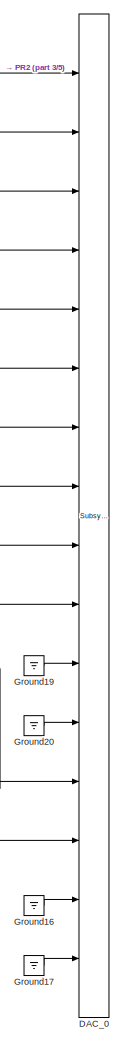
[diagram: root canvas - part 1/5, top center region]
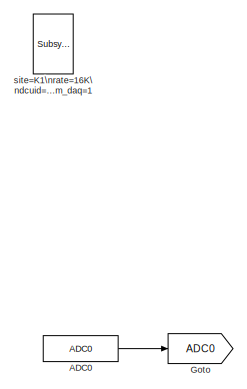
[diagram: root canvas - part 2/5, top left region]
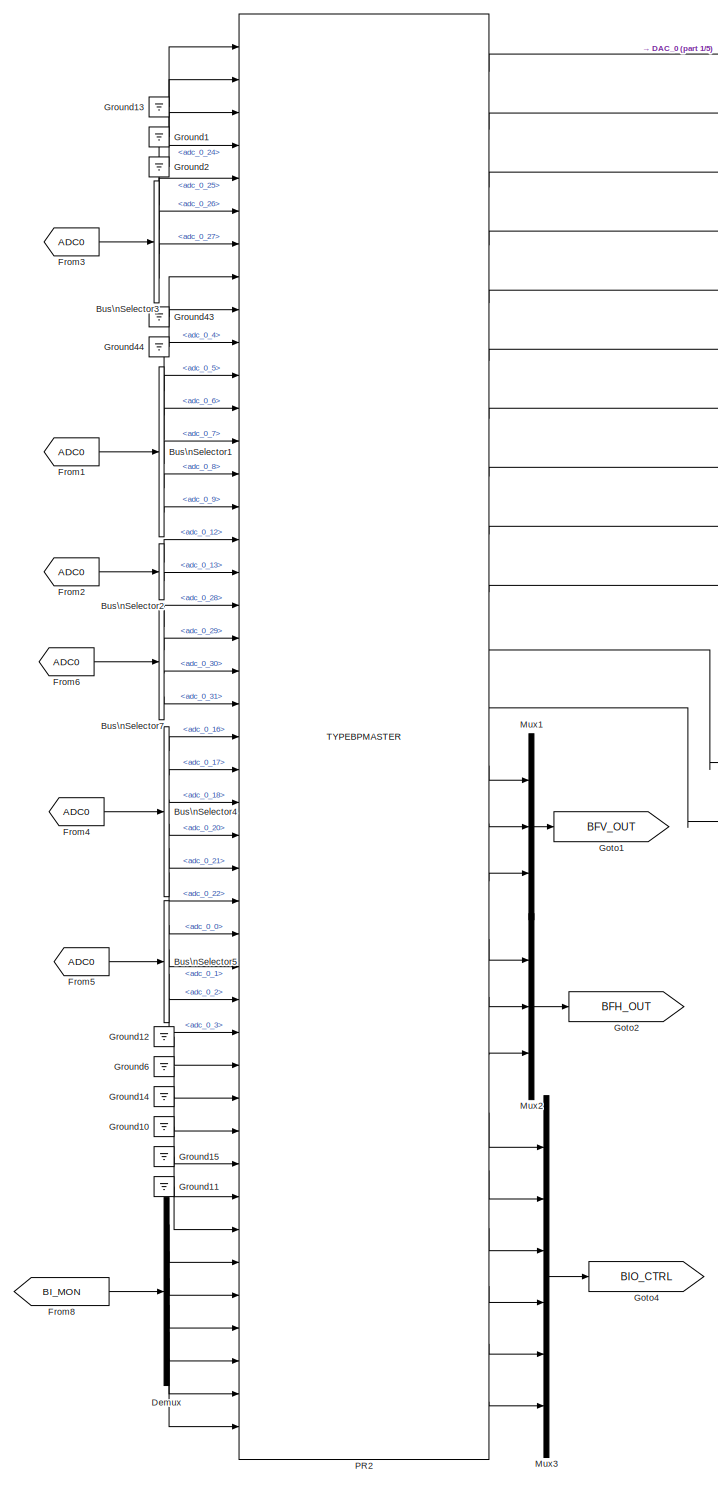
[diagram: root canvas - part 3/5, middle left region]
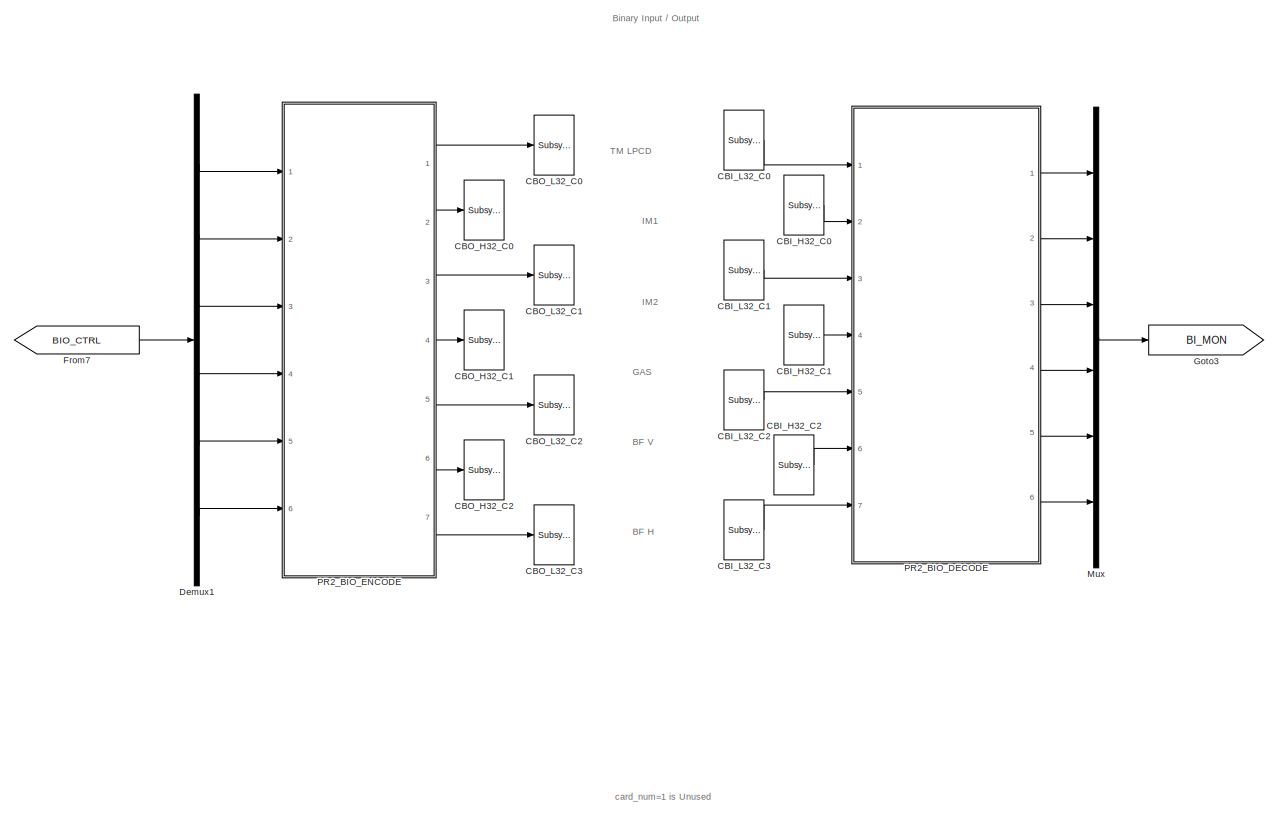
[diagram: root canvas - part 4/5, top right region]
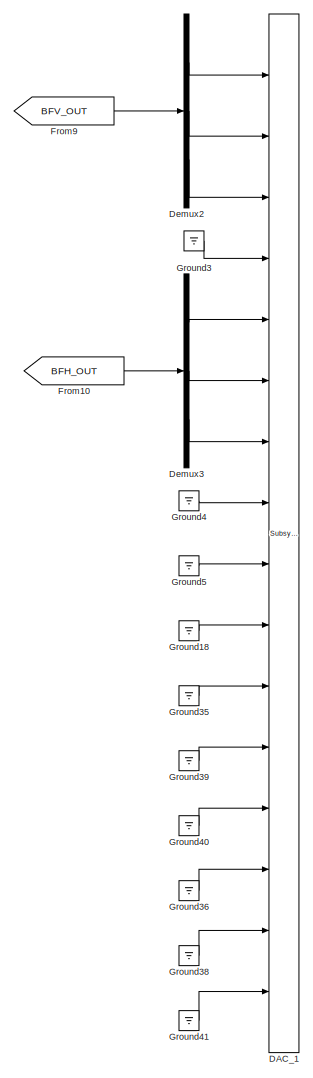
[diagram: root canvas - part 5/5, bottom center region]
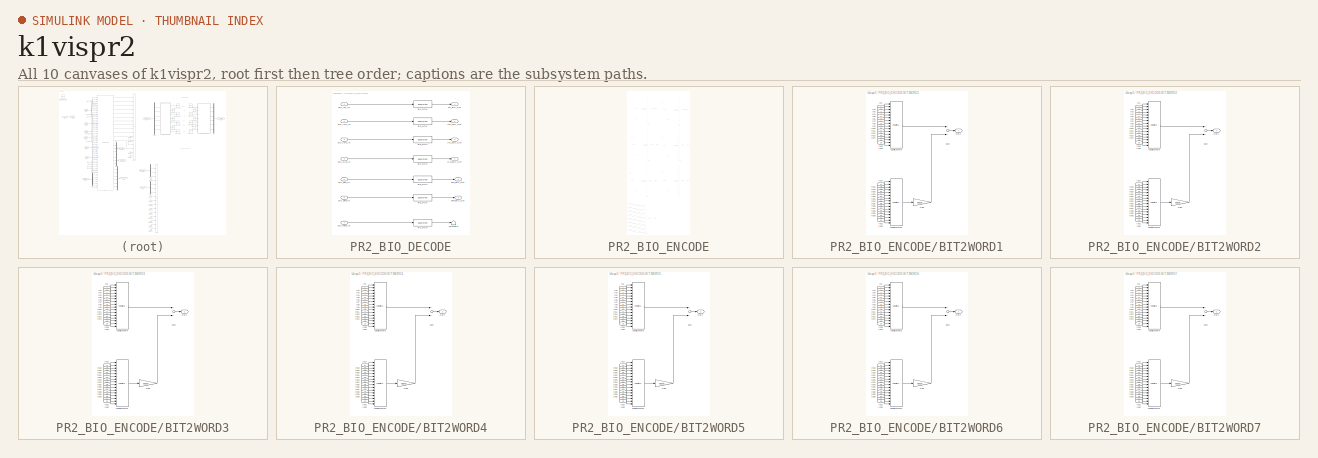
[diagram: thumbnail index - all 10 canvases of the model, root first then tree order]
MODEL k1vispr2
KIND model
BLOCK [Reference] ADC0  REF=cdsAdcx0/ADC0
  AttributesFormatString = %<Description>\\n%<Tag>
  Description = type-GSC_16AI64SSA\ncard_num=0
  Ports = [0, 1]
  SID = 5115
  SourceBlock = cdsAdcx0/ADC0
  SourceType = SubSystem
  Tag = cdsAdc
BLOCK [BusSelector] Bus\nSelector1
  AttributesFormatString = %<Description>
  Description = ADC Selector
  OutputSignals = adc_0_4,adc_0_5,adc_0_6,adc_0_7,adc_0_8,adc_0_9
  Ports = [1, 6]
  SID = 5240
BLOCK [BusSelector] Bus\nSelector2
  AttributesFormatString = %<Description>
  Description = ADC Selector
  OutputSignals = adc_0_12,adc_0_13
  Ports = [1, 2]
  SID = 5241
BLOCK [BusSelector] Bus\nSelector3
  AttributesFormatString = %<Description>
  Description = ADC Selector
  OutputSignals = adc_0_24,adc_0_25,adc_0_26,adc_0_27
  Ports = [1, 4]
  SID = 5242
BLOCK [BusSelector] Bus\nSelector4
  AttributesFormatString = %<Description>
  Description = ADC Selector
  OutputSignals = adc_0_16,adc_0_17,adc_0_18,adc_0_20,adc_0_21,adc_0_22
  Ports = [1, 6]
  SID = 5243
BLOCK [BusSelector] Bus\nSelector5
  AttributesFormatString = %<Description>
  Description = ADC Selector
  OutputSignals = adc_0_0,adc_0_1,adc_0_2,adc_0_3
  Ports = [1, 4]
  SID = 5244
BLOCK [BusSelector] Bus\nSelector7
  AttributesFormatString = %<Description>
  Description = ADC Selector
  OutputSignals = adc_0_28,adc_0_29,adc_0_30,adc_0_31
  Ports = [1, 4]
  SID = 5245
BLOCK [Reference] CBI_H32_C0  REF=cdsCDI64/Subsystem
  AttributesFormatString = %<Tag>\\n%<Description>
  Description = card_num=1
  Ports = [0, 1]
  SID = 5271
  SourceBlock = cdsCDI64/Subsystem
  SourceType = SubSystem
  Tag = cdsCDI64
BLOCK [Reference] CBI_H32_C1  REF=cdsCDI64/Subsystem
  AttributesFormatString = %<Tag>\\n%<Description>
  Description = card_num=3
  Ports = [0, 1]
  SID = 5272
  SourceBlock = cdsCDI64/Subsystem
  SourceType = SubSystem
  Tag = cdsCDI64
BLOCK [Reference] CBI_H32_C2  REF=cdsCDI64/Subsystem
  AttributesFormatString = %<Tag>\\n%<Description>
  Description = card_num=5
  Ports = [0, 1]
  SID = 5273
  SourceBlock = cdsCDI64/Subsystem
  SourceType = SubSystem
  Tag = cdsCDI64
BLOCK [Reference] CBI_L32_C0  REF=cdsCDI64/Subsystem
  AttributesFormatString = %<Tag>\\n%<Description>
  Description = card_num=0
  Ports = [0, 1]
  SID = 5665
  SourceBlock = cdsCDI64/Subsystem
  SourceType = SubSystem
  Tag = cdsCDI64
BLOCK [Reference] CBI_L32_C1  REF=cdsCDI64/Subsystem
  AttributesFormatString = %<Tag>\\n%<Description>
  Description = card_num=2
  Ports = [0, 1]
  SID = 5274
  SourceBlock = cdsCDI64/Subsystem
  SourceType = SubSystem
  Tag = cdsCDI64
BLOCK [Reference] CBI_L32_C2  REF=cdsCDI64/Subsystem
  AttributesFormatString = %<Tag>\\n%<Description>
  Description = card_num=4
  Ports = [0, 1]
  SID = 5275
  SourceBlock = cdsCDI64/Subsystem
  SourceType = SubSystem
  Tag = cdsCDI64
BLOCK [Reference] CBI_L32_C3  REF=cdsCDI64/Subsystem
  AttributesFormatString = %<Tag>\\n%<Description>
  Description = card_num=6
  Ports = [0, 1]
  SID = 5820
  SourceBlock = cdsCDI64/Subsystem
  SourceType = SubSystem
  Tag = cdsCDI64
BLOCK [Reference] CBO_H32_C0  REF=cdsCDO64/Subsystem
  AttributesFormatString = %<Tag>\\n%<Description>
  Description = card_num=1
  Ports = [1]
  SID = 5276
  SourceBlock = cdsCDO64/Subsystem
  SourceType = SubSystem
  Tag = cdsCDO64
BLOCK [Reference] CBO_H32_C1  REF=cdsCDO64/Subsystem
  AttributesFormatString = %<Tag>\\n%<Description>
  Description = card_num=3
  Ports = [1]
  SID = 5277
  SourceBlock = cdsCDO64/Subsystem
  SourceType = SubSystem
  Tag = cdsCDO64
BLOCK [Reference] CBO_H32_C2  REF=cdsCDO64/Subsystem
  AttributesFormatString = %<Tag>\\n%<Description>
  Description = card_num=5
  Ports = [1]
  SID = 5278
  SourceBlock = cdsCDO64/Subsystem
  SourceType = SubSystem
  Tag = cdsCDO64
BLOCK [Reference] CBO_L32_C0  REF=cdsCDO64/Subsystem
  AttributesFormatString = %<Tag>\\n%<Description>
  Description = card_num=0
  Ports = [1]
  SID = 5663
  SourceBlock = cdsCDO64/Subsystem
  SourceType = SubSystem
  Tag = cdsCDO64
BLOCK [Reference] CBO_L32_C1  REF=cdsCDO64/Subsystem
  AttributesFormatString = %<Tag>\\n%<Description>
  Description = card_num=2
  Ports = [1]
  SID = 5279
  SourceBlock = cdsCDO64/Subsystem
  SourceType = SubSystem
  Tag = cdsCDO64
BLOCK [Reference] CBO_L32_C2  REF=cdsCDO64/Subsystem
  AttributesFormatString = %<Tag>\\n%<Description>
  Description = card_num=4
  Ports = [1]
  SID = 5280
  SourceBlock = cdsCDO64/Subsystem
  SourceType = SubSystem
  Tag = cdsCDO64
BLOCK [Reference] CBO_L32_C3  REF=cdsCDO64/Subsystem
  AttributesFormatString = %<Tag>\\n%<Description>
  Description = card_num=6
  Ports = [1]
  SID = 5816
  SourceBlock = cdsCDO64/Subsystem
  SourceType = SubSystem
  Tag = cdsCDO64
BLOCK [Reference] DAC_0  REF=dac/Subsystem  (lib defined in slx_40ef132df75b, slx_b7657ccccc5b, +4 more)
  AttributesFormatString = %<Description>
  Description = type=GSC_16AO16,\ncard_num=0
  Ports = [16]
  SID = 5126
  SourceBlock = dac/Subsystem
  SourceType = SubSystem
BLOCK [Reference] DAC_1  REF=dac/Subsystem  (lib defined in slx_40ef132df75b, slx_b7657ccccc5b, +4 more)
  AttributesFormatString = %<Description>
  Description = type=GSC_16AO16,\ncard_num=1
  Ports = [16]
  SID = 5127
  SourceBlock = dac/Subsystem
  SourceType = SubSystem
BLOCK [Demux] Demux
  DisplayOption = bar
  Outputs = 6
  Ports = [1, 6]
  SID = 5246
BLOCK [Demux] Demux1
  DisplayOption = bar
  Outputs = 6
  Ports = [1, 6]
  SID = 5281
BLOCK [Demux] Demux2
  DisplayOption = bar
  Outputs = 3
  Ports = [1, 3]
  SID = 5236
BLOCK [Demux] Demux3
  DisplayOption = bar
  Outputs = 3
  Ports = [1, 3]
  SID = 5238
BLOCK [From] From1
  GotoTag = ADC0
  SID = 5247
BLOCK [From] From10
  GotoTag = BFH_OUT
  SID = 5239
BLOCK [From] From2
  GotoTag = ADC0
  SID = 5248
BLOCK [From] From3
  GotoTag = ADC0
  SID = 5249
BLOCK [From] From4
  GotoTag = ADC0
  SID = 5250
BLOCK [From] From5
  GotoTag = ADC0
  SID = 5251
BLOCK [From] From6
  GotoTag = ADC0
  SID = 5252
BLOCK [From] From7
  GotoTag = BIO_CTRL
  SID = 5282
BLOCK [From] From8
  GotoTag = BI_MON
  SID = 5253
BLOCK [From] From9
  GotoTag = BFV_OUT
  SID = 5237
BLOCK [Goto] Goto
  GotoTag = ADC0
  SID = 5134
BLOCK [Goto] Goto1
  GotoTag = BFV_OUT
  SID = 5265
BLOCK [Goto] Goto2
  GotoTag = BFH_OUT
  SID = 5266
BLOCK [Goto] Goto3
  GotoTag = BI_MON
  SID = 5283
BLOCK [Goto] Goto4
  GotoTag = BIO_CTRL
  SID = 5267
BLOCK [Ground] Ground1
  SID = 5254
BLOCK [Ground] Ground10
  SID = 5255
BLOCK [Ground] Ground11
  SID = 5256
BLOCK [Ground] Ground12
  SID = 5262
BLOCK [Ground] Ground13
  SID = 5257
BLOCK [Ground] Ground14
  SID = 5263
BLOCK [Ground] Ground15
  SID = 5264
BLOCK [Ground] Ground16
  SID = 5142
BLOCK [Ground] Ground17
  SID = 5143
BLOCK [Ground] Ground18
  SID = 5144
BLOCK [Ground] Ground19
  SID = 5226
BLOCK [Ground] Ground2
  SID = 5258
BLOCK [Ground] Ground20
  SID = 5227
BLOCK [Ground] Ground3
  SID = 5157
BLOCK [Ground] Ground35
  SID = 5163
BLOCK [Ground] Ground36
  SID = 5164
BLOCK [Ground] Ground38
  SID = 5166
BLOCK [Ground] Ground39
  SID = 5167
BLOCK [Ground] Ground4
  SID = 5168
BLOCK [Ground] Ground40
  SID = 5169
BLOCK [Ground] Ground41
  SID = 5170
BLOCK [Ground] Ground43
  SID = 5259
BLOCK [Ground] Ground44
  SID = 5260
BLOCK [Ground] Ground5
  SID = 5174
BLOCK [Ground] Ground6
  SID = 5261
BLOCK [Mux] Mux
  DisplayOption = bar
  Inputs = 6
  Ports = [6, 1]
  SID = 5285
BLOCK [Mux] Mux1
  DisplayOption = bar
  Inputs = 3
  Ports = [3, 1]
  SID = 5268
BLOCK [Mux] Mux2
  DisplayOption = bar
  Inputs = 3
  Ports = [3, 1]
  SID = 5269
BLOCK [Mux] Mux3
  DisplayOption = bar
  Inputs = 6
  Ports = [6, 1]
  SID = 5270
BLOCK [Reference] PR2  REF=TYPEBP_MASTER/TYPEBPMASTER
  AttributesFormatString = %<Description>
  Description = TYPEBP MASTER
  Ports = [43, 24]
  SID = 5179
  SourceBlock = TYPEBP_MASTER/TYPEBPMASTER
  SourceType = SubSystem
BLOCK [SubSystem] PR2_BIO_DECODE
  Ports = [7, 6]
  RequestExecContextInheritance = off
  SID = 5286
  Variant = off
BLOCK [Outport] PR2_BIO_DECODE/BFH_BIO_OUT
  IconDisplay = Port number
  Port = 6
  SID = 5304
BLOCK [Outport] PR2_BIO_DECODE/BFV_BIO_OUT
  IconDisplay = Port number
  Port = 5
  SID = 5303
BLOCK [Reference] PR2_BIO_DECODE/BI1_MON  REF=cdsEpicsOut/Subsystem
  AttributesFormatString = %<Tag>
  Description = Purpose:                                          \nOutput a FE signal to an EPICS channel.           \n                                                  \nOperation:                                        \nTakes input value and passes it to EPICS record.  \n                                                  \nUsage:                                            \nName the part with the desired EPICS...<+14ch>  <repeated x14 — deduplicated; at blocks: BI1_MON, BI2_MON, BI3_MON, BI4_MON, BI5_MON, BI6_MON, BI7_MON, DIO_0_OUT, DIO_1_OUT, DIO_2_OUT, DIO_3_OUT, DIO_4_OUT, DIO_4_OUT1, DIO_6_OUT>
  Ports = [1, 1]
  SID = 5293
  SourceBlock = cdsEpicsOut/Subsystem
  SourceType = SubSystem
  Tag = cdsEpicsOutput
BLOCK [Reference] PR2_BIO_DECODE/BI2_MON  REF=cdsEpicsOut/Subsystem
  AttributesFormatString = %<Tag>
  Ports = [1, 1]
  SID = 5294
  SourceBlock = cdsEpicsOut/Subsystem
  SourceType = SubSystem
  Tag = cdsEpicsOutput
BLOCK [Reference] PR2_BIO_DECODE/BI3_MON  REF=cdsEpicsOut/Subsystem
  AttributesFormatString = %<Tag>
  Ports = [1, 1]
  SID = 5295
  SourceBlock = cdsEpicsOut/Subsystem
  SourceType = SubSystem
  Tag = cdsEpicsOutput
BLOCK [Reference] PR2_BIO_DECODE/BI4_MON  REF=cdsEpicsOut/Subsystem
  AttributesFormatString = %<Tag>
  Ports = [1, 1]
  SID = 5296
  SourceBlock = cdsEpicsOut/Subsystem
  SourceType = SubSystem
  Tag = cdsEpicsOutput
BLOCK [Reference] PR2_BIO_DECODE/BI5_MON  REF=cdsEpicsOut/Subsystem
  AttributesFormatString = %<Tag>
  Ports = [1, 1]
  SID = 5297
  SourceBlock = cdsEpicsOut/Subsystem
  SourceType = SubSystem
  Tag = cdsEpicsOutput
BLOCK [Reference] PR2_BIO_DECODE/BI6_MON  REF=cdsEpicsOut/Subsystem
  AttributesFormatString = %<Tag>
  Ports = [1, 1]
  SID = 5298
  SourceBlock = cdsEpicsOut/Subsystem
  SourceType = SubSystem
  Tag = cdsEpicsOutput
BLOCK [Reference] PR2_BIO_DECODE/BI7_MON  REF=cdsEpicsOut/Subsystem
  AttributesFormatString = %<Tag>
  Ports = [1, 1]
  SID = 5818
  SourceBlock = cdsEpicsOut/Subsystem
  SourceType = SubSystem
  Tag = cdsEpicsOutput
BLOCK [Inport] PR2_BIO_DECODE/DIO_BFH_IN
  IconDisplay = Port number
  Port = 6
  SID = 5292
BLOCK [Inport] PR2_BIO_DECODE/DIO_BFV_IN
  IconDisplay = Port number
  Port = 5
  SID = 5291
BLOCK [Inport] PR2_BIO_DECODE/DIO_GAS_IN
  IconDisplay = Port number
  Port = 4
  SID = 5290
BLOCK [Inport] PR2_BIO_DECODE/DIO_IM1_IN
  IconDisplay = Port number
  Port = 2
  SID = 5288
BLOCK [Inport] PR2_BIO_DECODE/DIO_IM2_IN
  IconDisplay = Port number
  Port = 3
  SID = 5289
BLOCK [Inport] PR2_BIO_DECODE/DIO_TEST_IN
  IconDisplay = Port number
  Port = 7
  SID = 5817
BLOCK [Inport] PR2_BIO_DECODE/DIO_TM_IN
  IconDisplay = Port number
  SID = 5287
BLOCK [Outport] PR2_BIO_DECODE/GAS_BIO_OUT
  IconDisplay = Port number
  Port = 4
  SID = 5302
BLOCK [Outport] PR2_BIO_DECODE/IM1_BIO_OUT
  IconDisplay = Port number
  Port = 2
  SID = 5300
BLOCK [Outport] PR2_BIO_DECODE/IM2_BIO_OUT
  IconDisplay = Port number
  Port = 3
  SID = 5301
BLOCK [Outport] PR2_BIO_DECODE/TM_BIO_OUT
  IconDisplay = Port number
  SID = 5299
BLOCK [Terminator] PR2_BIO_DECODE/Terminator
  SID = 5819
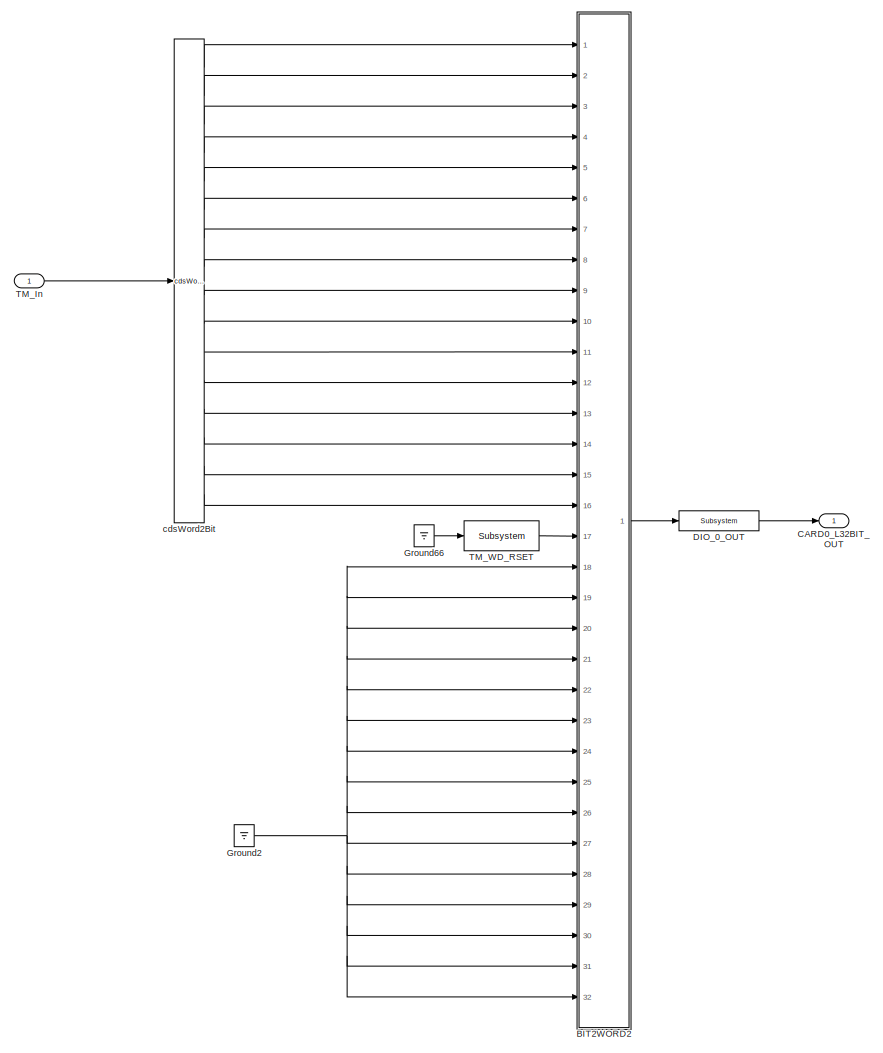
[diagram: PR2_BIO_ENCODE - part 1/7, top left region]
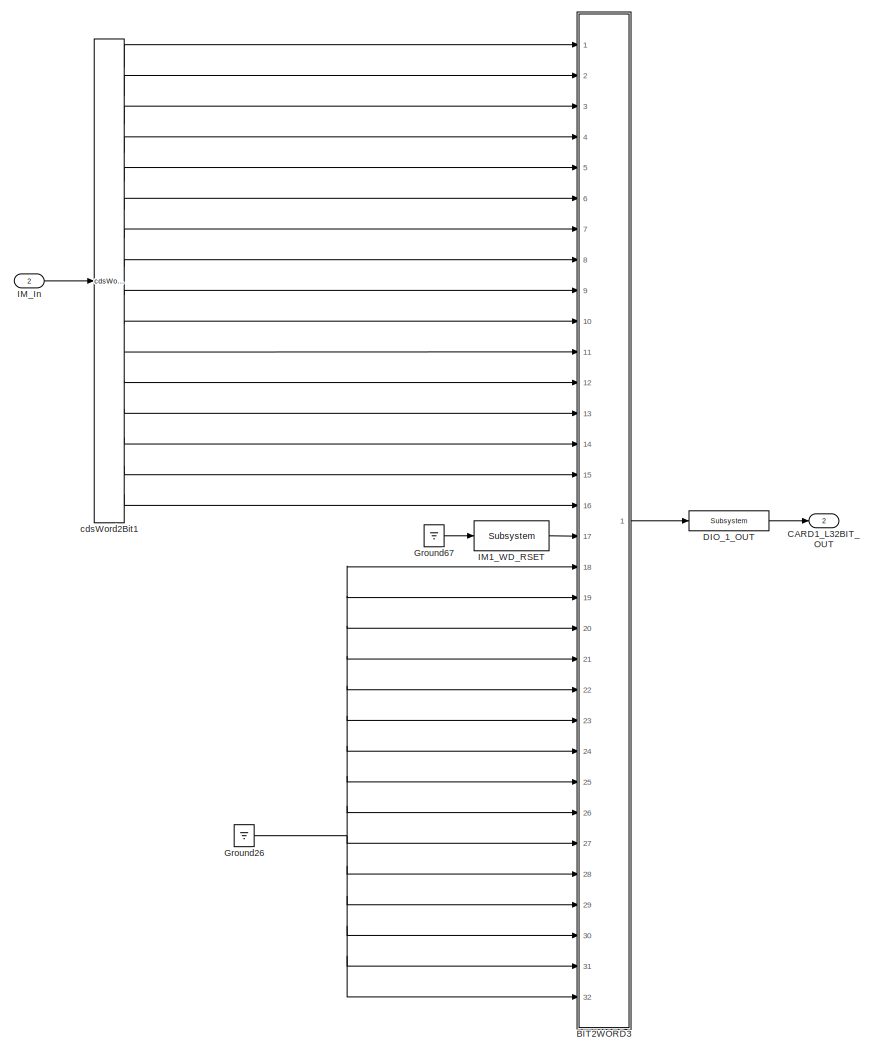
[diagram: PR2_BIO_ENCODE - part 2/7, top right region]
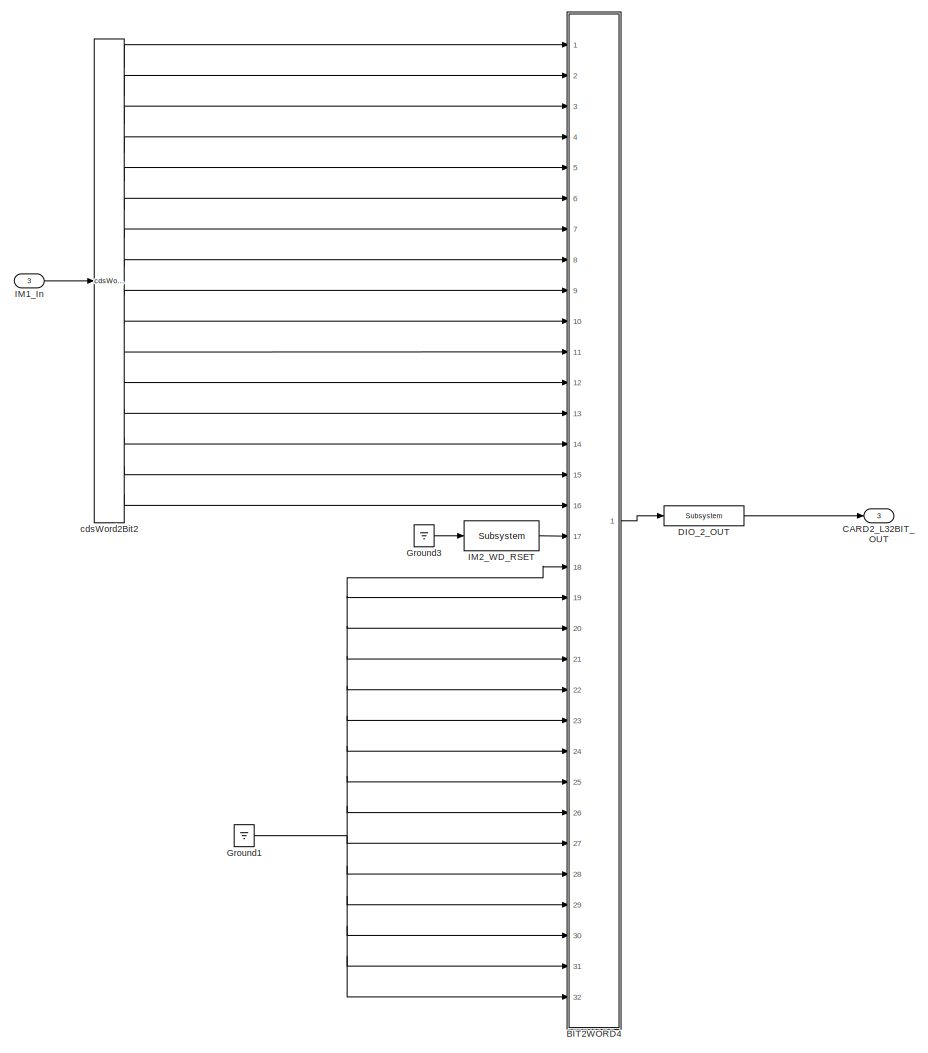
[diagram: PR2_BIO_ENCODE - part 3/7, middle left region]
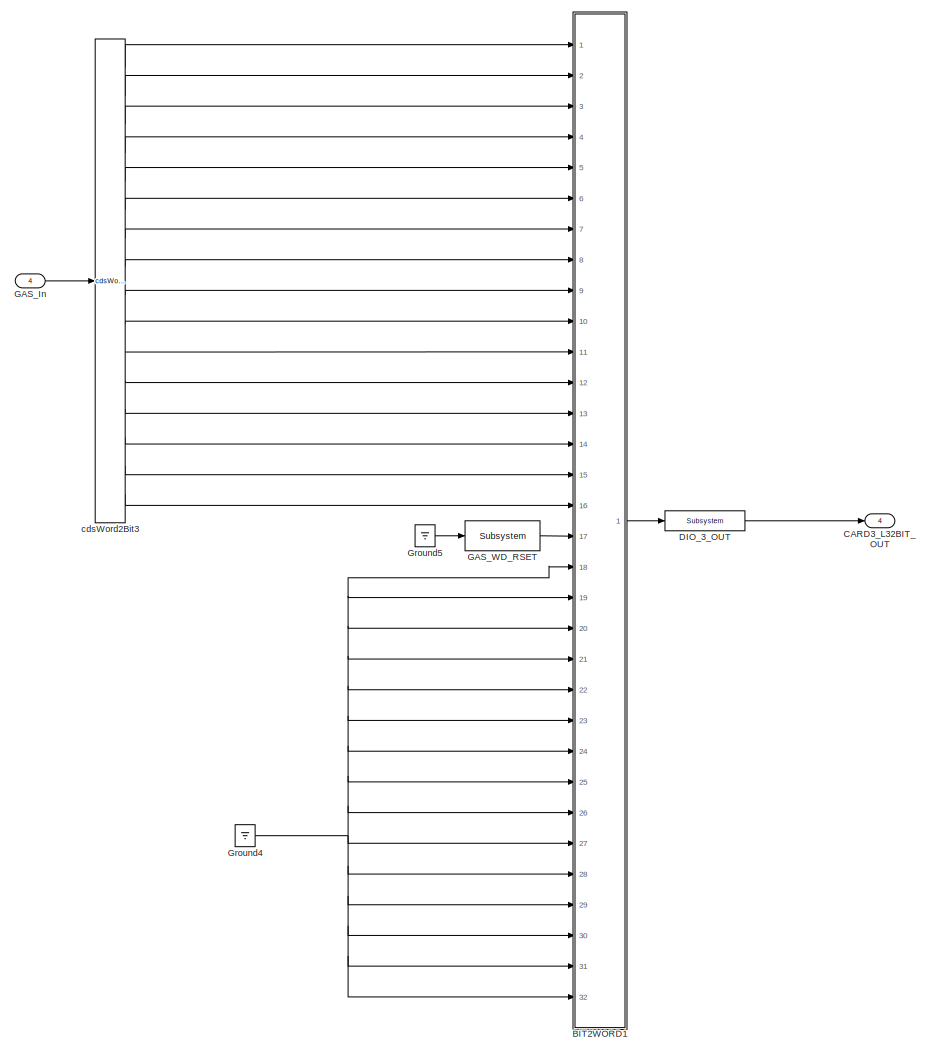
[diagram: PR2_BIO_ENCODE - part 4/7, middle right region]
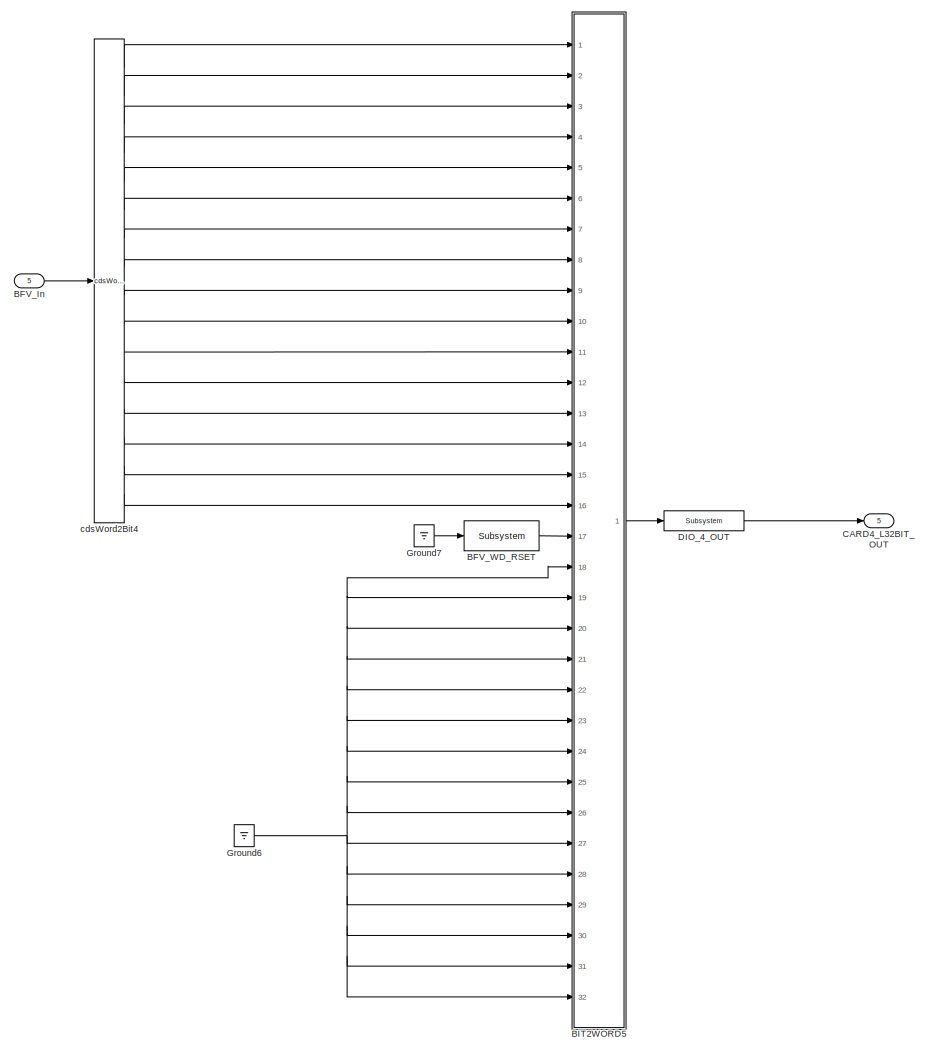
[diagram: PR2_BIO_ENCODE - part 5/7, middle right region]
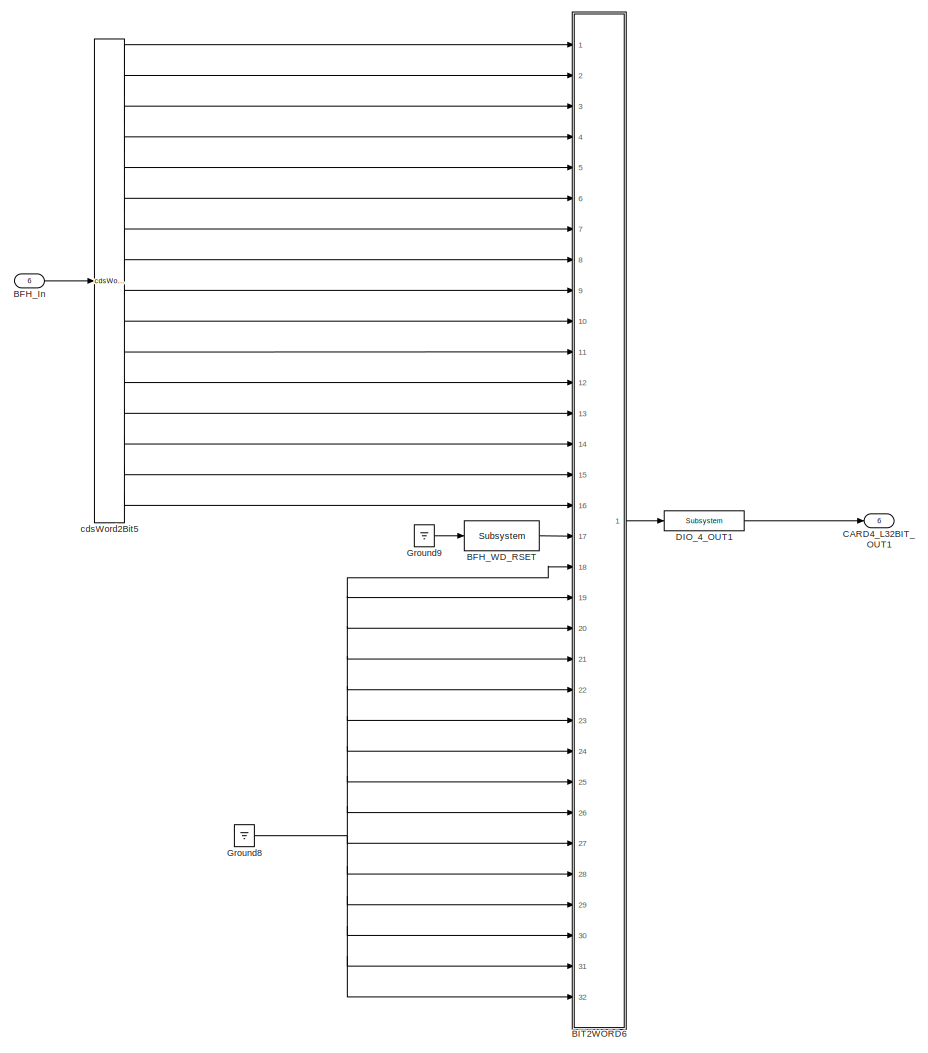
[diagram: PR2_BIO_ENCODE - part 6/7, middle left region]
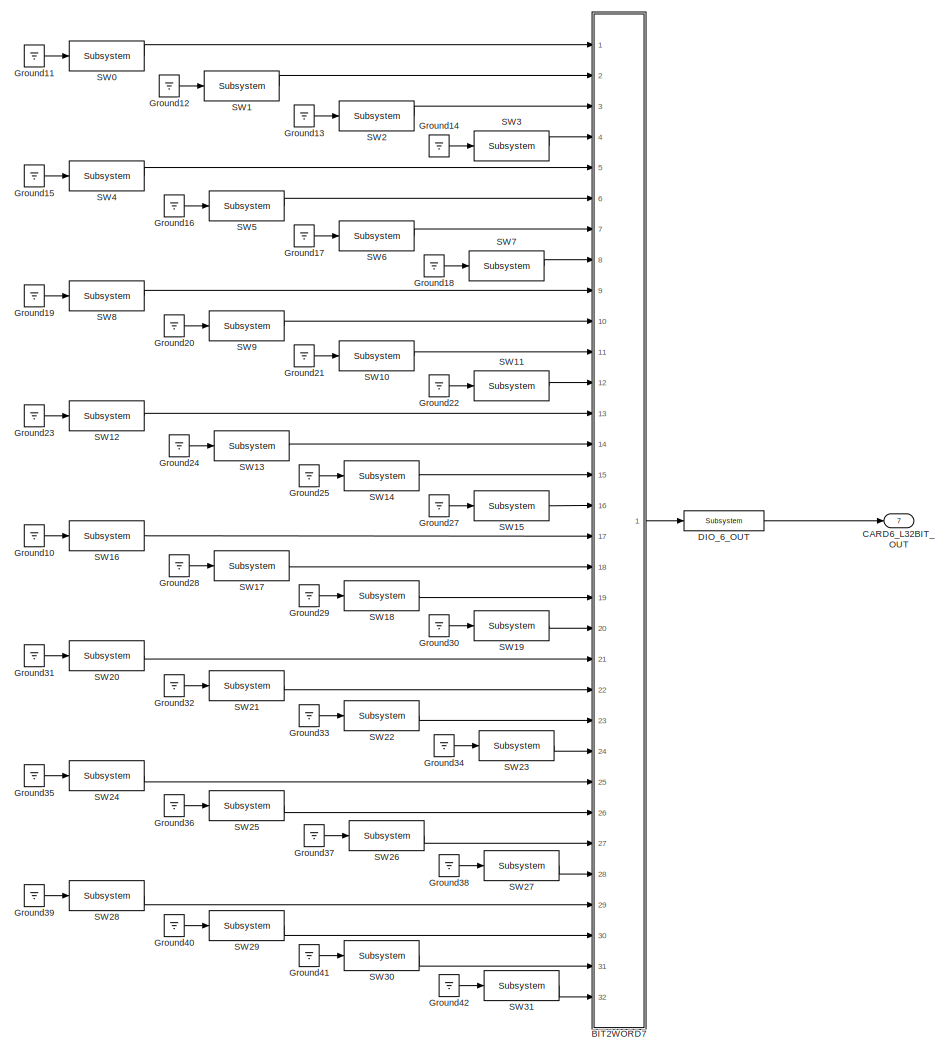
[diagram: PR2_BIO_ENCODE - part 7/7, bottom left region]
BLOCK [SubSystem] PR2_BIO_ENCODE
  Ports = [6, 7]
  RequestExecContextInheritance = off
  SID = 5305
  Variant = off
BLOCK [Inport] PR2_BIO_ENCODE/BFH_In
  IconDisplay = Port number
  Port = 6
  SID = 5311
BLOCK [Reference] PR2_BIO_ENCODE/BFH_WD_RSET  REF=cdsEpicsBinIn/Subsystem
  AttributesFormatString = %<Tag>
  Description = Purpose:                                                                            \nCreate an EPICS binary (0 or 1) input channel to the FE realtime controls.          \n                                                                                    \nOperation:                                                                          \nOutputs value from an EPICS ai record. Value is binary i...<+252ch>  <repeated x38 — deduplicated; at blocks: BFH_WD_RSET, BFV_WD_RSET, GAS_WD_RSET, IM1_WD_RSET, IM2_WD_RSET, SW0, SW1, SW10, SW11, SW12, SW13, SW14, SW15, SW16, SW17, SW18, +22 more>
  Ports = [1, 1]
  SID = 5312
  SourceBlock = cdsEpicsBinIn/Subsystem
  SourceType = SubSystem
  Tag = cdsEpicsBinIn
BLOCK [Inport] PR2_BIO_ENCODE/BFV_In
  IconDisplay = Port number
  Port = 5
  SID = 5310
BLOCK [Reference] PR2_BIO_ENCODE/BFV_WD_RSET  REF=cdsEpicsBinIn/Subsystem
  AttributesFormatString = %<Tag>
  Ports = [1, 1]
  SID = 5313
  SourceBlock = cdsEpicsBinIn/Subsystem
  SourceType = SubSystem
  Tag = cdsEpicsBinIn
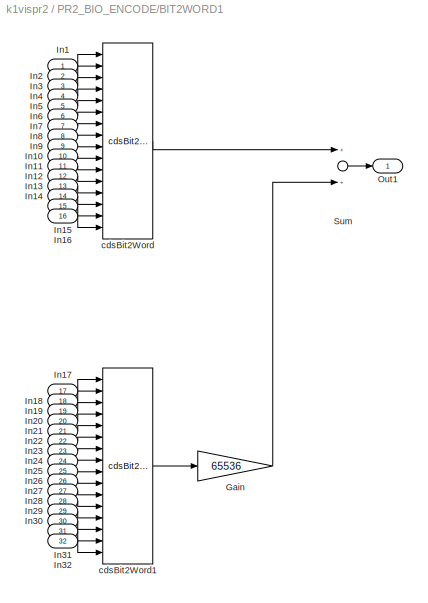
BLOCK [SubSystem] PR2_BIO_ENCODE/BIT2WORD1
  Ports = [32, 1]
  RequestExecContextInheritance = off
  SID = 5314
  Variant = off
BLOCK [Gain] PR2_BIO_ENCODE/BIT2WORD1/Gain
  Gain = 65536
  OutDataTypeStr = Inherit: Inherit via internal rule
  ParamDataTypeStr = Inherit: Inherit via internal rule
  SID = 5347
  SaturateOnIntegerOverflow = off
BLOCK [Inport] PR2_BIO_ENCODE/BIT2WORD1/In1
  IconDisplay = Port number
  SID = 5315
BLOCK [Inport] PR2_BIO_ENCODE/BIT2WORD1/In10
  IconDisplay = Port number
  Port = 10
  SID = 5324
BLOCK [Inport] PR2_BIO_ENCODE/BIT2WORD1/In11
  IconDisplay = Port number
  Port = 11
  SID = 5325
BLOCK [Inport] PR2_BIO_ENCODE/BIT2WORD1/In12
  IconDisplay = Port number
  Port = 12
  SID = 5326
BLOCK [Inport] PR2_BIO_ENCODE/BIT2WORD1/In13
  IconDisplay = Port number
  Port = 13
  SID = 5327
BLOCK [Inport] PR2_BIO_ENCODE/BIT2WORD1/In14
  IconDisplay = Port number
  Port = 14
  SID = 5328
BLOCK [Inport] PR2_BIO_ENCODE/BIT2WORD1/In15
  IconDisplay = Port number
  Port = 15
  SID = 5329
BLOCK [Inport] PR2_BIO_ENCODE/BIT2WORD1/In16
  IconDisplay = Port number
  Port = 16
  SID = 5330
BLOCK [Inport] PR2_BIO_ENCODE/BIT2WORD1/In17
  IconDisplay = Port number
  Port = 17
  SID = 5331
BLOCK [Inport] PR2_BIO_ENCODE/BIT2WORD1/In18
  IconDisplay = Port number
  Port = 18
  SID = 5332
BLOCK [Inport] PR2_BIO_ENCODE/BIT2WORD1/In19
  IconDisplay = Port number
  Port = 19
  SID = 5333
BLOCK [Inport] PR2_BIO_ENCODE/BIT2WORD1/In2
  IconDisplay = Port number
  Port = 2
  SID = 5316
BLOCK [Inport] PR2_BIO_ENCODE/BIT2WORD1/In20
  IconDisplay = Port number
  Port = 20
  SID = 5334
BLOCK [Inport] PR2_BIO_ENCODE/BIT2WORD1/In21
  IconDisplay = Port number
  Port = 21
  SID = 5335
BLOCK [Inport] PR2_BIO_ENCODE/BIT2WORD1/In22
  IconDisplay = Port number
  Port = 22
  SID = 5336
BLOCK [Inport] PR2_BIO_ENCODE/BIT2WORD1/In23
  IconDisplay = Port number
  Port = 23
  SID = 5337
BLOCK [Inport] PR2_BIO_ENCODE/BIT2WORD1/In24
  IconDisplay = Port number
  Port = 24
  SID = 5338
BLOCK [Inport] PR2_BIO_ENCODE/BIT2WORD1/In25
  IconDisplay = Port number
  Port = 25
  SID = 5339
BLOCK [Inport] PR2_BIO_ENCODE/BIT2WORD1/In26
  IconDisplay = Port number
  Port = 26
  SID = 5340
BLOCK [Inport] PR2_BIO_ENCODE/BIT2WORD1/In27
  IconDisplay = Port number
  Port = 27
  SID = 5341
BLOCK [Inport] PR2_BIO_ENCODE/BIT2WORD1/In28
  IconDisplay = Port number
  Port = 28
  SID = 5342
BLOCK [Inport] PR2_BIO_ENCODE/BIT2WORD1/In29
  IconDisplay = Port number
  Port = 29
  SID = 5343
BLOCK [Inport] PR2_BIO_ENCODE/BIT2WORD1/In3
  IconDisplay = Port number
  Port = 3
  SID = 5317
BLOCK [Inport] PR2_BIO_ENCODE/BIT2WORD1/In30
  IconDisplay = Port number
  Port = 30
  SID = 5344
BLOCK [Inport] PR2_BIO_ENCODE/BIT2WORD1/In31
  IconDisplay = Port number
  Port = 31
  SID = 5345
BLOCK [Inport] PR2_BIO_ENCODE/BIT2WORD1/In32
  IconDisplay = Port number
  Port = 32
  SID = 5346
BLOCK [Inport] PR2_BIO_ENCODE/BIT2WORD1/In4
  IconDisplay = Port number
  Port = 4
  SID = 5318
BLOCK [Inport] PR2_BIO_ENCODE/BIT2WORD1/In5
  IconDisplay = Port number
  Port = 5
  SID = 5319
BLOCK [Inport] PR2_BIO_ENCODE/BIT2WORD1/In6
  IconDisplay = Port number
  Port = 6
  SID = 5320
BLOCK [Inport] PR2_BIO_ENCODE/BIT2WORD1/In7
  IconDisplay = Port number
  Port = 7
  SID = 5321
BLOCK [Inport] PR2_BIO_ENCODE/BIT2WORD1/In8
  IconDisplay = Port number
  Port = 8
  SID = 5322
BLOCK [Inport] PR2_BIO_ENCODE/BIT2WORD1/In9
  IconDisplay = Port number
  Port = 9
  SID = 5323
BLOCK [Outport] PR2_BIO_ENCODE/BIT2WORD1/Out1
  IconDisplay = Port number
  SID = 5351
BLOCK [Sum] PR2_BIO_ENCODE/BIT2WORD1/Sum
  InputSameDT = off
  OutDataTypeStr = Inherit: Inherit via internal rule
  Ports = [2, 1]
  SID = 5348
  SaturateOnIntegerOverflow = off
BLOCK [Reference] PR2_BIO_ENCODE/BIT2WORD1/cdsBit2Word  REF=cdsBit2Word/cdsBit2Word
  AttributesFormatString = %<Tag>
  Description = Forms single 16 bit integer from 16 0/1 inputs.
  Ports = [16, 1]
  SID = 5349
  SourceBlock = cdsBit2Word/cdsBit2Word
  SourceType = SubSystem
  Tag = cdsBit2Word
BLOCK [Reference] PR2_BIO_ENCODE/BIT2WORD1/cdsBit2Word1  REF=cdsBit2Word/cdsBit2Word
  AttributesFormatString = %<Tag>
  Description = Forms single 16 bit integer from 16 0/1 inputs.
  Ports = [16, 1]
  SID = 5350
  SourceBlock = cdsBit2Word/cdsBit2Word
  SourceType = SubSystem
  Tag = cdsBit2Word
BLOCK [SubSystem] PR2_BIO_ENCODE/BIT2WORD2
  Ports = [32, 1]
  RequestExecContextInheritance = off
  SID = 5352
  Variant = off
BLOCK [Gain] PR2_BIO_ENCODE/BIT2WORD2/Gain
  Gain = 65536
  OutDataTypeStr = Inherit: Inherit via internal rule
  ParamDataTypeStr = Inherit: Inherit via internal rule
  SID = 5385
  SaturateOnIntegerOverflow = off
BLOCK [Inport] PR2_BIO_ENCODE/BIT2WORD2/In1
  IconDisplay = Port number
  SID = 5353
BLOCK [Inport] PR2_BIO_ENCODE/BIT2WORD2/In10
  IconDisplay = Port number
  Port = 10
  SID = 5362
BLOCK [Inport] PR2_BIO_ENCODE/BIT2WORD2/In11
  IconDisplay = Port number
  Port = 11
  SID = 5363
BLOCK [Inport] PR2_BIO_ENCODE/BIT2WORD2/In12
  IconDisplay = Port number
  Port = 12
  SID = 5364
BLOCK [Inport] PR2_BIO_ENCODE/BIT2WORD2/In13
  IconDisplay = Port number
  Port = 13
  SID = 5365
BLOCK [Inport] PR2_BIO_ENCODE/BIT2WORD2/In14
  IconDisplay = Port number
  Port = 14
  SID = 5366
BLOCK [Inport] PR2_BIO_ENCODE/BIT2WORD2/In15
  IconDisplay = Port number
  Port = 15
  SID = 5367
BLOCK [Inport] PR2_BIO_ENCODE/BIT2WORD2/In16
  IconDisplay = Port number
  Port = 16
  SID = 5368
BLOCK [Inport] PR2_BIO_ENCODE/BIT2WORD2/In17
  IconDisplay = Port number
  Port = 17
  SID = 5369
BLOCK [Inport] PR2_BIO_ENCODE/BIT2WORD2/In18
  IconDisplay = Port number
  Port = 18
  SID = 5370
BLOCK [Inport] PR2_BIO_ENCODE/BIT2WORD2/In19
  IconDisplay = Port number
  Port = 19
  SID = 5371
BLOCK [Inport] PR2_BIO_ENCODE/BIT2WORD2/In2
  IconDisplay = Port number
  Port = 2
  SID = 5354
BLOCK [Inport] PR2_BIO_ENCODE/BIT2WORD2/In20
  IconDisplay = Port number
  Port = 20
  SID = 5372
BLOCK [Inport] PR2_BIO_ENCODE/BIT2WORD2/In21
  IconDisplay = Port number
  Port = 21
  SID = 5373
BLOCK [Inport] PR2_BIO_ENCODE/BIT2WORD2/In22
  IconDisplay = Port number
  Port = 22
  SID = 5374
BLOCK [Inport] PR2_BIO_ENCODE/BIT2WORD2/In23
  IconDisplay = Port number
  Port = 23
  SID = 5375
BLOCK [Inport] PR2_BIO_ENCODE/BIT2WORD2/In24
  IconDisplay = Port number
  Port = 24
  SID = 5376
BLOCK [Inport] PR2_BIO_ENCODE/BIT2WORD2/In25
  IconDisplay = Port number
  Port = 25
  SID = 5377
BLOCK [Inport] PR2_BIO_ENCODE/BIT2WORD2/In26
  IconDisplay = Port number
  Port = 26
  SID = 5378
BLOCK [Inport] PR2_BIO_ENCODE/BIT2WORD2/In27
  IconDisplay = Port number
  Port = 27
  SID = 5379
BLOCK [Inport] PR2_BIO_ENCODE/BIT2WORD2/In28
  IconDisplay = Port number
  Port = 28
  SID = 5380
BLOCK [Inport] PR2_BIO_ENCODE/BIT2WORD2/In29
  IconDisplay = Port number
  Port = 29
  SID = 5381
BLOCK [Inport] PR2_BIO_ENCODE/BIT2WORD2/In3
  IconDisplay = Port number
  Port = 3
  SID = 5355
BLOCK [Inport] PR2_BIO_ENCODE/BIT2WORD2/In30
  IconDisplay = Port number
  Port = 30
  SID = 5382
BLOCK [Inport] PR2_BIO_ENCODE/BIT2WORD2/In31
  IconDisplay = Port number
  Port = 31
  SID = 5383
BLOCK [Inport] PR2_BIO_ENCODE/BIT2WORD2/In32
  IconDisplay = Port number
  Port = 32
  SID = 5384
BLOCK [Inport] PR2_BIO_ENCODE/BIT2WORD2/In4
  IconDisplay = Port number
  Port = 4
  SID = 5356
BLOCK [Inport] PR2_BIO_ENCODE/BIT2WORD2/In5
  IconDisplay = Port number
  Port = 5
  SID = 5357
BLOCK [Inport] PR2_BIO_ENCODE/BIT2WORD2/In6
  IconDisplay = Port number
  Port = 6
  SID = 5358
BLOCK [Inport] PR2_BIO_ENCODE/BIT2WORD2/In7
  IconDisplay = Port number
  Port = 7
  SID = 5359
BLOCK [Inport] PR2_BIO_ENCODE/BIT2WORD2/In8
  IconDisplay = Port number
  Port = 8
  SID = 5360
BLOCK [Inport] PR2_BIO_ENCODE/BIT2WORD2/In9
  IconDisplay = Port number
  Port = 9
  SID = 5361
BLOCK [Outport] PR2_BIO_ENCODE/BIT2WORD2/Out1
  IconDisplay = Port number
  SID = 5389
BLOCK [Sum] PR2_BIO_ENCODE/BIT2WORD2/Sum
  InputSameDT = off
  OutDataTypeStr = Inherit: Inherit via internal rule
  Ports = [2, 1]
  SID = 5386
  SaturateOnIntegerOverflow = off
BLOCK [Reference] PR2_BIO_ENCODE/BIT2WORD2/cdsBit2Word  REF=cdsBit2Word/cdsBit2Word
  AttributesFormatString = %<Tag>
  Description = Forms single 16 bit integer from 16 0/1 inputs.
  Ports = [16, 1]
  SID = 5387
  SourceBlock = cdsBit2Word/cdsBit2Word
  SourceType = SubSystem
  Tag = cdsBit2Word
BLOCK [Reference] PR2_BIO_ENCODE/BIT2WORD2/cdsBit2Word1  REF=cdsBit2Word/cdsBit2Word
  AttributesFormatString = %<Tag>
  Description = Forms single 16 bit integer from 16 0/1 inputs.
  Ports = [16, 1]
  SID = 5388
  SourceBlock = cdsBit2Word/cdsBit2Word
  SourceType = SubSystem
  Tag = cdsBit2Word
BLOCK [SubSystem] PR2_BIO_ENCODE/BIT2WORD3
  Ports = [32, 1]
  RequestExecContextInheritance = off
  SID = 5390
  Variant = off
BLOCK [Gain] PR2_BIO_ENCODE/BIT2WORD3/Gain
  Gain = 65536
  OutDataTypeStr = Inherit: Inherit via internal rule
  ParamDataTypeStr = Inherit: Inherit via internal rule
  SID = 5423
  SaturateOnIntegerOverflow = off
BLOCK [Inport] PR2_BIO_ENCODE/BIT2WORD3/In1
  IconDisplay = Port number
  SID = 5391
BLOCK [Inport] PR2_BIO_ENCODE/BIT2WORD3/In10
  IconDisplay = Port number
  Port = 10
  SID = 5400
BLOCK [Inport] PR2_BIO_ENCODE/BIT2WORD3/In11
  IconDisplay = Port number
  Port = 11
  SID = 5401
BLOCK [Inport] PR2_BIO_ENCODE/BIT2WORD3/In12
  IconDisplay = Port number
  Port = 12
  SID = 5402
BLOCK [Inport] PR2_BIO_ENCODE/BIT2WORD3/In13
  IconDisplay = Port number
  Port = 13
  SID = 5403
BLOCK [Inport] PR2_BIO_ENCODE/BIT2WORD3/In14
  IconDisplay = Port number
  Port = 14
  SID = 5404
BLOCK [Inport] PR2_BIO_ENCODE/BIT2WORD3/In15
  IconDisplay = Port number
  Port = 15
  SID = 5405
BLOCK [Inport] PR2_BIO_ENCODE/BIT2WORD3/In16
  IconDisplay = Port number
  Port = 16
  SID = 5406
BLOCK [Inport] PR2_BIO_ENCODE/BIT2WORD3/In17
  IconDisplay = Port number
  Port = 17
  SID = 5407
BLOCK [Inport] PR2_BIO_ENCODE/BIT2WORD3/In18
  IconDisplay = Port number
  Port = 18
  SID = 5408
BLOCK [Inport] PR2_BIO_ENCODE/BIT2WORD3/In19
  IconDisplay = Port number
  Port = 19
  SID = 5409
BLOCK [Inport] PR2_BIO_ENCODE/BIT2WORD3/In2
  IconDisplay = Port number
  Port = 2
  SID = 5392
BLOCK [Inport] PR2_BIO_ENCODE/BIT2WORD3/In20
  IconDisplay = Port number
  Port = 20
  SID = 5410
BLOCK [Inport] PR2_BIO_ENCODE/BIT2WORD3/In21
  IconDisplay = Port number
  Port = 21
  SID = 5411
BLOCK [Inport] PR2_BIO_ENCODE/BIT2WORD3/In22
  IconDisplay = Port number
  Port = 22
  SID = 5412
BLOCK [Inport] PR2_BIO_ENCODE/BIT2WORD3/In23
  IconDisplay = Port number
  Port = 23
  SID = 5413
BLOCK [Inport] PR2_BIO_ENCODE/BIT2WORD3/In24
  IconDisplay = Port number
  Port = 24
  SID = 5414
BLOCK [Inport] PR2_BIO_ENCODE/BIT2WORD3/In25
  IconDisplay = Port number
  Port = 25
  SID = 5415
BLOCK [Inport] PR2_BIO_ENCODE/BIT2WORD3/In26
  IconDisplay = Port number
  Port = 26
  SID = 5416
BLOCK [Inport] PR2_BIO_ENCODE/BIT2WORD3/In27
  IconDisplay = Port number
  Port = 27
  SID = 5417
BLOCK [Inport] PR2_BIO_ENCODE/BIT2WORD3/In28
  IconDisplay = Port number
  Port = 28
  SID = 5418
BLOCK [Inport] PR2_BIO_ENCODE/BIT2WORD3/In29
  IconDisplay = Port number
  Port = 29
  SID = 5419
BLOCK [Inport] PR2_BIO_ENCODE/BIT2WORD3/In3
  IconDisplay = Port number
  Port = 3
  SID = 5393
BLOCK [Inport] PR2_BIO_ENCODE/BIT2WORD3/In30
  IconDisplay = Port number
  Port = 30
  SID = 5420
BLOCK [Inport] PR2_BIO_ENCODE/BIT2WORD3/In31
  IconDisplay = Port number
  Port = 31
  SID = 5421
BLOCK [Inport] PR2_BIO_ENCODE/BIT2WORD3/In32
  IconDisplay = Port number
  Port = 32
  SID = 5422
BLOCK [Inport] PR2_BIO_ENCODE/BIT2WORD3/In4
  IconDisplay = Port number
  Port = 4
  SID = 5394
BLOCK [Inport] PR2_BIO_ENCODE/BIT2WORD3/In5
  IconDisplay = Port number
  Port = 5
  SID = 5395
BLOCK [Inport] PR2_BIO_ENCODE/BIT2WORD3/In6
  IconDisplay = Port number
  Port = 6
  SID = 5396
BLOCK [Inport] PR2_BIO_ENCODE/BIT2WORD3/In7
  IconDisplay = Port number
  Port = 7
  SID = 5397
BLOCK [Inport] PR2_BIO_ENCODE/BIT2WORD3/In8
  IconDisplay = Port number
  Port = 8
  SID = 5398
BLOCK [Inport] PR2_BIO_ENCODE/BIT2WORD3/In9
  IconDisplay = Port number
  Port = 9
  SID = 5399
BLOCK [Outport] PR2_BIO_ENCODE/BIT2WORD3/Out1
  IconDisplay = Port number
  SID = 5427
BLOCK [Sum] PR2_BIO_ENCODE/BIT2WORD3/Sum
  InputSameDT = off
  OutDataTypeStr = Inherit: Inherit via internal rule
  Ports = [2, 1]
  SID = 5424
  SaturateOnIntegerOverflow = off
BLOCK [Reference] PR2_BIO_ENCODE/BIT2WORD3/cdsBit2Word  REF=cdsBit2Word/cdsBit2Word
  AttributesFormatString = %<Tag>
  Description = Forms single 16 bit integer from 16 0/1 inputs.
  Ports = [16, 1]
  SID = 5425
  SourceBlock = cdsBit2Word/cdsBit2Word
  SourceType = SubSystem
  Tag = cdsBit2Word
BLOCK [Reference] PR2_BIO_ENCODE/BIT2WORD3/cdsBit2Word1  REF=cdsBit2Word/cdsBit2Word
  AttributesFormatString = %<Tag>
  Description = Forms single 16 bit integer from 16 0/1 inputs.
  Ports = [16, 1]
  SID = 5426
  SourceBlock = cdsBit2Word/cdsBit2Word
  SourceType = SubSystem
  Tag = cdsBit2Word
BLOCK [SubSystem] PR2_BIO_ENCODE/BIT2WORD4
  Ports = [32, 1]
  RequestExecContextInheritance = off
  SID = 5428
  Variant = off
BLOCK [Gain] PR2_BIO_ENCODE/BIT2WORD4/Gain
  Gain = 65536
  OutDataTypeStr = Inherit: Inherit via internal rule
  ParamDataTypeStr = Inherit: Inherit via internal rule
  SID = 5461
  SaturateOnIntegerOverflow = off
BLOCK [Inport] PR2_BIO_ENCODE/BIT2WORD4/In1
  IconDisplay = Port number
  SID = 5429
BLOCK [Inport] PR2_BIO_ENCODE/BIT2WORD4/In10
  IconDisplay = Port number
  Port = 10
  SID = 5438
BLOCK [Inport] PR2_BIO_ENCODE/BIT2WORD4/In11
  IconDisplay = Port number
  Port = 11
  SID = 5439
BLOCK [Inport] PR2_BIO_ENCODE/BIT2WORD4/In12
  IconDisplay = Port number
  Port = 12
  SID = 5440
BLOCK [Inport] PR2_BIO_ENCODE/BIT2WORD4/In13
  IconDisplay = Port number
  Port = 13
  SID = 5441
BLOCK [Inport] PR2_BIO_ENCODE/BIT2WORD4/In14
  IconDisplay = Port number
  Port = 14
  SID = 5442
BLOCK [Inport] PR2_BIO_ENCODE/BIT2WORD4/In15
  IconDisplay = Port number
  Port = 15
  SID = 5443
BLOCK [Inport] PR2_BIO_ENCODE/BIT2WORD4/In16
  IconDisplay = Port number
  Port = 16
  SID = 5444
BLOCK [Inport] PR2_BIO_ENCODE/BIT2WORD4/In17
  IconDisplay = Port number
  Port = 17
  SID = 5445
BLOCK [Inport] PR2_BIO_ENCODE/BIT2WORD4/In18
  IconDisplay = Port number
  Port = 18
  SID = 5446
BLOCK [Inport] PR2_BIO_ENCODE/BIT2WORD4/In19
  IconDisplay = Port number
  Port = 19
  SID = 5447
BLOCK [Inport] PR2_BIO_ENCODE/BIT2WORD4/In2
  IconDisplay = Port number
  Port = 2
  SID = 5430
BLOCK [Inport] PR2_BIO_ENCODE/BIT2WORD4/In20
  IconDisplay = Port number
  Port = 20
  SID = 5448
BLOCK [Inport] PR2_BIO_ENCODE/BIT2WORD4/In21
  IconDisplay = Port number
  Port = 21
  SID = 5449
BLOCK [Inport] PR2_BIO_ENCODE/BIT2WORD4/In22
  IconDisplay = Port number
  Port = 22
  SID = 5450
BLOCK [Inport] PR2_BIO_ENCODE/BIT2WORD4/In23
  IconDisplay = Port number
  Port = 23
  SID = 5451
BLOCK [Inport] PR2_BIO_ENCODE/BIT2WORD4/In24
  IconDisplay = Port number
  Port = 24
  SID = 5452
BLOCK [Inport] PR2_BIO_ENCODE/BIT2WORD4/In25
  IconDisplay = Port number
  Port = 25
  SID = 5453
BLOCK [Inport] PR2_BIO_ENCODE/BIT2WORD4/In26
  IconDisplay = Port number
  Port = 26
  SID = 5454
BLOCK [Inport] PR2_BIO_ENCODE/BIT2WORD4/In27
  IconDisplay = Port number
  Port = 27
  SID = 5455
BLOCK [Inport] PR2_BIO_ENCODE/BIT2WORD4/In28
  IconDisplay = Port number
  Port = 28
  SID = 5456
BLOCK [Inport] PR2_BIO_ENCODE/BIT2WORD4/In29
  IconDisplay = Port number
  Port = 29
  SID = 5457
BLOCK [Inport] PR2_BIO_ENCODE/BIT2WORD4/In3
  IconDisplay = Port number
  Port = 3
  SID = 5431
BLOCK [Inport] PR2_BIO_ENCODE/BIT2WORD4/In30
  IconDisplay = Port number
  Port = 30
  SID = 5458
BLOCK [Inport] PR2_BIO_ENCODE/BIT2WORD4/In31
  IconDisplay = Port number
  Port = 31
  SID = 5459
BLOCK [Inport] PR2_BIO_ENCODE/BIT2WORD4/In32
  IconDisplay = Port number
  Port = 32
  SID = 5460
BLOCK [Inport] PR2_BIO_ENCODE/BIT2WORD4/In4
  IconDisplay = Port number
  Port = 4
  SID = 5432
BLOCK [Inport] PR2_BIO_ENCODE/BIT2WORD4/In5
  IconDisplay = Port number
  Port = 5
  SID = 5433
BLOCK [Inport] PR2_BIO_ENCODE/BIT2WORD4/In6
  IconDisplay = Port number
  Port = 6
  SID = 5434
BLOCK [Inport] PR2_BIO_ENCODE/BIT2WORD4/In7
  IconDisplay = Port number
  Port = 7
  SID = 5435
BLOCK [Inport] PR2_BIO_ENCODE/BIT2WORD4/In8
  IconDisplay = Port number
  Port = 8
  SID = 5436
BLOCK [Inport] PR2_BIO_ENCODE/BIT2WORD4/In9
  IconDisplay = Port number
  Port = 9
  SID = 5437
BLOCK [Outport] PR2_BIO_ENCODE/BIT2WORD4/Out1
  IconDisplay = Port number
  SID = 5465
BLOCK [Sum] PR2_BIO_ENCODE/BIT2WORD4/Sum
  InputSameDT = off
  OutDataTypeStr = Inherit: Inherit via internal rule
  Ports = [2, 1]
  SID = 5462
  SaturateOnIntegerOverflow = off
BLOCK [Reference] PR2_BIO_ENCODE/BIT2WORD4/cdsBit2Word  REF=cdsBit2Word/cdsBit2Word
  AttributesFormatString = %<Tag>
  Description = Forms single 16 bit integer from 16 0/1 inputs.
  Ports = [16, 1]
  SID = 5463
  SourceBlock = cdsBit2Word/cdsBit2Word
  SourceType = SubSystem
  Tag = cdsBit2Word
BLOCK [Reference] PR2_BIO_ENCODE/BIT2WORD4/cdsBit2Word1  REF=cdsBit2Word/cdsBit2Word
  AttributesFormatString = %<Tag>
  Description = Forms single 16 bit integer from 16 0/1 inputs.
  Ports = [16, 1]
  SID = 5464
  SourceBlock = cdsBit2Word/cdsBit2Word
  SourceType = SubSystem
  Tag = cdsBit2Word
BLOCK [SubSystem] PR2_BIO_ENCODE/BIT2WORD5
  Ports = [32, 1]
  RequestExecContextInheritance = off
  SID = 5466
  Variant = off
BLOCK [Gain] PR2_BIO_ENCODE/BIT2WORD5/Gain
  Gain = 65536
  OutDataTypeStr = Inherit: Inherit via internal rule
  ParamDataTypeStr = Inherit: Inherit via internal rule
  SID = 5499
  SaturateOnIntegerOverflow = off
BLOCK [Inport] PR2_BIO_ENCODE/BIT2WORD5/In1
  IconDisplay = Port number
  SID = 5467
BLOCK [Inport] PR2_BIO_ENCODE/BIT2WORD5/In10
  IconDisplay = Port number
  Port = 10
  SID = 5476
BLOCK [Inport] PR2_BIO_ENCODE/BIT2WORD5/In11
  IconDisplay = Port number
  Port = 11
  SID = 5477
BLOCK [Inport] PR2_BIO_ENCODE/BIT2WORD5/In12
  IconDisplay = Port number
  Port = 12
  SID = 5478
BLOCK [Inport] PR2_BIO_ENCODE/BIT2WORD5/In13
  IconDisplay = Port number
  Port = 13
  SID = 5479
BLOCK [Inport] PR2_BIO_ENCODE/BIT2WORD5/In14
  IconDisplay = Port number
  Port = 14
  SID = 5480
BLOCK [Inport] PR2_BIO_ENCODE/BIT2WORD5/In15
  IconDisplay = Port number
  Port = 15
  SID = 5481
BLOCK [Inport] PR2_BIO_ENCODE/BIT2WORD5/In16
  IconDisplay = Port number
  Port = 16
  SID = 5482
BLOCK [Inport] PR2_BIO_ENCODE/BIT2WORD5/In17
  IconDisplay = Port number
  Port = 17
  SID = 5483
BLOCK [Inport] PR2_BIO_ENCODE/BIT2WORD5/In18
  IconDisplay = Port number
  Port = 18
  SID = 5484
BLOCK [Inport] PR2_BIO_ENCODE/BIT2WORD5/In19
  IconDisplay = Port number
  Port = 19
  SID = 5485
BLOCK [Inport] PR2_BIO_ENCODE/BIT2WORD5/In2
  IconDisplay = Port number
  Port = 2
  SID = 5468
BLOCK [Inport] PR2_BIO_ENCODE/BIT2WORD5/In20
  IconDisplay = Port number
  Port = 20
  SID = 5486
BLOCK [Inport] PR2_BIO_ENCODE/BIT2WORD5/In21
  IconDisplay = Port number
  Port = 21
  SID = 5487
BLOCK [Inport] PR2_BIO_ENCODE/BIT2WORD5/In22
  IconDisplay = Port number
  Port = 22
  SID = 5488
BLOCK [Inport] PR2_BIO_ENCODE/BIT2WORD5/In23
  IconDisplay = Port number
  Port = 23
  SID = 5489
BLOCK [Inport] PR2_BIO_ENCODE/BIT2WORD5/In24
  IconDisplay = Port number
  Port = 24
  SID = 5490
BLOCK [Inport] PR2_BIO_ENCODE/BIT2WORD5/In25
  IconDisplay = Port number
  Port = 25
  SID = 5491
BLOCK [Inport] PR2_BIO_ENCODE/BIT2WORD5/In26
  IconDisplay = Port number
  Port = 26
  SID = 5492
BLOCK [Inport] PR2_BIO_ENCODE/BIT2WORD5/In27
  IconDisplay = Port number
  Port = 27
  SID = 5493
BLOCK [Inport] PR2_BIO_ENCODE/BIT2WORD5/In28
  IconDisplay = Port number
  Port = 28
  SID = 5494
BLOCK [Inport] PR2_BIO_ENCODE/BIT2WORD5/In29
  IconDisplay = Port number
  Port = 29
  SID = 5495
BLOCK [Inport] PR2_BIO_ENCODE/BIT2WORD5/In3
  IconDisplay = Port number
  Port = 3
  SID = 5469
BLOCK [Inport] PR2_BIO_ENCODE/BIT2WORD5/In30
  IconDisplay = Port number
  Port = 30
  SID = 5496
BLOCK [Inport] PR2_BIO_ENCODE/BIT2WORD5/In31
  IconDisplay = Port number
  Port = 31
  SID = 5497
BLOCK [Inport] PR2_BIO_ENCODE/BIT2WORD5/In32
  IconDisplay = Port number
  Port = 32
  SID = 5498
BLOCK [Inport] PR2_BIO_ENCODE/BIT2WORD5/In4
  IconDisplay = Port number
  Port = 4
  SID = 5470
BLOCK [Inport] PR2_BIO_ENCODE/BIT2WORD5/In5
  IconDisplay = Port number
  Port = 5
  SID = 5471
BLOCK [Inport] PR2_BIO_ENCODE/BIT2WORD5/In6
  IconDisplay = Port number
  Port = 6
  SID = 5472
BLOCK [Inport] PR2_BIO_ENCODE/BIT2WORD5/In7
  IconDisplay = Port number
  Port = 7
  SID = 5473
BLOCK [Inport] PR2_BIO_ENCODE/BIT2WORD5/In8
  IconDisplay = Port number
  Port = 8
  SID = 5474
BLOCK [Inport] PR2_BIO_ENCODE/BIT2WORD5/In9
  IconDisplay = Port number
  Port = 9
  SID = 5475
BLOCK [Outport] PR2_BIO_ENCODE/BIT2WORD5/Out1
  IconDisplay = Port number
  SID = 5503
BLOCK [Sum] PR2_BIO_ENCODE/BIT2WORD5/Sum
  InputSameDT = off
  OutDataTypeStr = Inherit: Inherit via internal rule
  Ports = [2, 1]
  SID = 5500
  SaturateOnIntegerOverflow = off
BLOCK [Reference] PR2_BIO_ENCODE/BIT2WORD5/cdsBit2Word  REF=cdsBit2Word/cdsBit2Word
  AttributesFormatString = %<Tag>
  Description = Forms single 16 bit integer from 16 0/1 inputs.
  Ports = [16, 1]
  SID = 5501
  SourceBlock = cdsBit2Word/cdsBit2Word
  SourceType = SubSystem
  Tag = cdsBit2Word
BLOCK [Reference] PR2_BIO_ENCODE/BIT2WORD5/cdsBit2Word1  REF=cdsBit2Word/cdsBit2Word
  AttributesFormatString = %<Tag>
  Description = Forms single 16 bit integer from 16 0/1 inputs.
  Ports = [16, 1]
  SID = 5502
  SourceBlock = cdsBit2Word/cdsBit2Word
  SourceType = SubSystem
  Tag = cdsBit2Word
BLOCK [SubSystem] PR2_BIO_ENCODE/BIT2WORD6
  Ports = [32, 1]
  RequestExecContextInheritance = off
  SID = 5504
  Variant = off
BLOCK [Gain] PR2_BIO_ENCODE/BIT2WORD6/Gain
  Gain = 65536
  OutDataTypeStr = Inherit: Inherit via internal rule
  ParamDataTypeStr = Inherit: Inherit via internal rule
  SID = 5537
  SaturateOnIntegerOverflow = off
BLOCK [Inport] PR2_BIO_ENCODE/BIT2WORD6/In1
  IconDisplay = Port number
  SID = 5505
BLOCK [Inport] PR2_BIO_ENCODE/BIT2WORD6/In10
  IconDisplay = Port number
  Port = 10
  SID = 5514
BLOCK [Inport] PR2_BIO_ENCODE/BIT2WORD6/In11
  IconDisplay = Port number
  Port = 11
  SID = 5515
BLOCK [Inport] PR2_BIO_ENCODE/BIT2WORD6/In12
  IconDisplay = Port number
  Port = 12
  SID = 5516
BLOCK [Inport] PR2_BIO_ENCODE/BIT2WORD6/In13
  IconDisplay = Port number
  Port = 13
  SID = 5517
BLOCK [Inport] PR2_BIO_ENCODE/BIT2WORD6/In14
  IconDisplay = Port number
  Port = 14
  SID = 5518
BLOCK [Inport] PR2_BIO_ENCODE/BIT2WORD6/In15
  IconDisplay = Port number
  Port = 15
  SID = 5519
BLOCK [Inport] PR2_BIO_ENCODE/BIT2WORD6/In16
  IconDisplay = Port number
  Port = 16
  SID = 5520
BLOCK [Inport] PR2_BIO_ENCODE/BIT2WORD6/In17
  IconDisplay = Port number
  Port = 17
  SID = 5521
BLOCK [Inport] PR2_BIO_ENCODE/BIT2WORD6/In18
  IconDisplay = Port number
  Port = 18
  SID = 5522
BLOCK [Inport] PR2_BIO_ENCODE/BIT2WORD6/In19
  IconDisplay = Port number
  Port = 19
  SID = 5523
BLOCK [Inport] PR2_BIO_ENCODE/BIT2WORD6/In2
  IconDisplay = Port number
  Port = 2
  SID = 5506
BLOCK [Inport] PR2_BIO_ENCODE/BIT2WORD6/In20
  IconDisplay = Port number
  Port = 20
  SID = 5524
BLOCK [Inport] PR2_BIO_ENCODE/BIT2WORD6/In21
  IconDisplay = Port number
  Port = 21
  SID = 5525
BLOCK [Inport] PR2_BIO_ENCODE/BIT2WORD6/In22
  IconDisplay = Port number
  Port = 22
  SID = 5526
BLOCK [Inport] PR2_BIO_ENCODE/BIT2WORD6/In23
  IconDisplay = Port number
  Port = 23
  SID = 5527
BLOCK [Inport] PR2_BIO_ENCODE/BIT2WORD6/In24
  IconDisplay = Port number
  Port = 24
  SID = 5528
BLOCK [Inport] PR2_BIO_ENCODE/BIT2WORD6/In25
  IconDisplay = Port number
  Port = 25
  SID = 5529
BLOCK [Inport] PR2_BIO_ENCODE/BIT2WORD6/In26
  IconDisplay = Port number
  Port = 26
  SID = 5530
BLOCK [Inport] PR2_BIO_ENCODE/BIT2WORD6/In27
  IconDisplay = Port number
  Port = 27
  SID = 5531
BLOCK [Inport] PR2_BIO_ENCODE/BIT2WORD6/In28
  IconDisplay = Port number
  Port = 28
  SID = 5532
BLOCK [Inport] PR2_BIO_ENCODE/BIT2WORD6/In29
  IconDisplay = Port number
  Port = 29
  SID = 5533
BLOCK [Inport] PR2_BIO_ENCODE/BIT2WORD6/In3
  IconDisplay = Port number
  Port = 3
  SID = 5507
BLOCK [Inport] PR2_BIO_ENCODE/BIT2WORD6/In30
  IconDisplay = Port number
  Port = 30
  SID = 5534
BLOCK [Inport] PR2_BIO_ENCODE/BIT2WORD6/In31
  IconDisplay = Port number
  Port = 31
  SID = 5535
BLOCK [Inport] PR2_BIO_ENCODE/BIT2WORD6/In32
  IconDisplay = Port number
  Port = 32
  SID = 5536
BLOCK [Inport] PR2_BIO_ENCODE/BIT2WORD6/In4
  IconDisplay = Port number
  Port = 4
  SID = 5508
BLOCK [Inport] PR2_BIO_ENCODE/BIT2WORD6/In5
  IconDisplay = Port number
  Port = 5
  SID = 5509
BLOCK [Inport] PR2_BIO_ENCODE/BIT2WORD6/In6
  IconDisplay = Port number
  Port = 6
  SID = 5510
BLOCK [Inport] PR2_BIO_ENCODE/BIT2WORD6/In7
  IconDisplay = Port number
  Port = 7
  SID = 5511
BLOCK [Inport] PR2_BIO_ENCODE/BIT2WORD6/In8
  IconDisplay = Port number
  Port = 8
  SID = 5512
BLOCK [Inport] PR2_BIO_ENCODE/BIT2WORD6/In9
  IconDisplay = Port number
  Port = 9
  SID = 5513
BLOCK [Outport] PR2_BIO_ENCODE/BIT2WORD6/Out1
  IconDisplay = Port number
  SID = 5541
BLOCK [Sum] PR2_BIO_ENCODE/BIT2WORD6/Sum
  InputSameDT = off
  OutDataTypeStr = Inherit: Inherit via internal rule
  Ports = [2, 1]
  SID = 5538
  SaturateOnIntegerOverflow = off
BLOCK [Reference] PR2_BIO_ENCODE/BIT2WORD6/cdsBit2Word  REF=cdsBit2Word/cdsBit2Word
  AttributesFormatString = %<Tag>
  Description = Forms single 16 bit integer from 16 0/1 inputs.
  Ports = [16, 1]
  SID = 5539
  SourceBlock = cdsBit2Word/cdsBit2Word
  SourceType = SubSystem
  Tag = cdsBit2Word
BLOCK [Reference] PR2_BIO_ENCODE/BIT2WORD6/cdsBit2Word1  REF=cdsBit2Word/cdsBit2Word
  AttributesFormatString = %<Tag>
  Description = Forms single 16 bit integer from 16 0/1 inputs.
  Ports = [16, 1]
  SID = 5540
  SourceBlock = cdsBit2Word/cdsBit2Word
  SourceType = SubSystem
  Tag = cdsBit2Word
BLOCK [SubSystem] PR2_BIO_ENCODE/BIT2WORD7
  Ports = [32, 1]
  RequestExecContextInheritance = off
  SID = 5713
  Variant = off
BLOCK [Gain] PR2_BIO_ENCODE/BIT2WORD7/Gain
  Gain = 65536
  OutDataTypeStr = Inherit: Inherit via internal rule
  ParamDataTypeStr = Inherit: Inherit via internal rule
  SID = 5746
  SaturateOnIntegerOverflow = off
BLOCK [Inport] PR2_BIO_ENCODE/BIT2WORD7/In1
  IconDisplay = Port number
  SID = 5714
BLOCK [Inport] PR2_BIO_ENCODE/BIT2WORD7/In10
  IconDisplay = Port number
  Port = 10
  SID = 5723
BLOCK [Inport] PR2_BIO_ENCODE/BIT2WORD7/In11
  IconDisplay = Port number
  Port = 11
  SID = 5724
BLOCK [Inport] PR2_BIO_ENCODE/BIT2WORD7/In12
  IconDisplay = Port number
  Port = 12
  SID = 5725
BLOCK [Inport] PR2_BIO_ENCODE/BIT2WORD7/In13
  IconDisplay = Port number
  Port = 13
  SID = 5726
BLOCK [Inport] PR2_BIO_ENCODE/BIT2WORD7/In14
  IconDisplay = Port number
  Port = 14
  SID = 5727
BLOCK [Inport] PR2_BIO_ENCODE/BIT2WORD7/In15
  IconDisplay = Port number
  Port = 15
  SID = 5728
BLOCK [Inport] PR2_BIO_ENCODE/BIT2WORD7/In16
  IconDisplay = Port number
  Port = 16
  SID = 5729
BLOCK [Inport] PR2_BIO_ENCODE/BIT2WORD7/In17
  IconDisplay = Port number
  Port = 17
  SID = 5730
BLOCK [Inport] PR2_BIO_ENCODE/BIT2WORD7/In18
  IconDisplay = Port number
  Port = 18
  SID = 5731
BLOCK [Inport] PR2_BIO_ENCODE/BIT2WORD7/In19
  IconDisplay = Port number
  Port = 19
  SID = 5732
BLOCK [Inport] PR2_BIO_ENCODE/BIT2WORD7/In2
  IconDisplay = Port number
  Port = 2
  SID = 5715
BLOCK [Inport] PR2_BIO_ENCODE/BIT2WORD7/In20
  IconDisplay = Port number
  Port = 20
  SID = 5733
BLOCK [Inport] PR2_BIO_ENCODE/BIT2WORD7/In21
  IconDisplay = Port number
  Port = 21
  SID = 5734
BLOCK [Inport] PR2_BIO_ENCODE/BIT2WORD7/In22
  IconDisplay = Port number
  Port = 22
  SID = 5735
BLOCK [Inport] PR2_BIO_ENCODE/BIT2WORD7/In23
  IconDisplay = Port number
  Port = 23
  SID = 5736
BLOCK [Inport] PR2_BIO_ENCODE/BIT2WORD7/In24
  IconDisplay = Port number
  Port = 24
  SID = 5737
BLOCK [Inport] PR2_BIO_ENCODE/BIT2WORD7/In25
  IconDisplay = Port number
  Port = 25
  SID = 5738
BLOCK [Inport] PR2_BIO_ENCODE/BIT2WORD7/In26
  IconDisplay = Port number
  Port = 26
  SID = 5739
BLOCK [Inport] PR2_BIO_ENCODE/BIT2WORD7/In27
  IconDisplay = Port number
  Port = 27
  SID = 5740
BLOCK [Inport] PR2_BIO_ENCODE/BIT2WORD7/In28
  IconDisplay = Port number
  Port = 28
  SID = 5741
BLOCK [Inport] PR2_BIO_ENCODE/BIT2WORD7/In29
  IconDisplay = Port number
  Port = 29
  SID = 5742
BLOCK [Inport] PR2_BIO_ENCODE/BIT2WORD7/In3
  IconDisplay = Port number
  Port = 3
  SID = 5716
BLOCK [Inport] PR2_BIO_ENCODE/BIT2WORD7/In30
  IconDisplay = Port number
  Port = 30
  SID = 5743
BLOCK [Inport] PR2_BIO_ENCODE/BIT2WORD7/In31
  IconDisplay = Port number
  Port = 31
  SID = 5744
BLOCK [Inport] PR2_BIO_ENCODE/BIT2WORD7/In32
  IconDisplay = Port number
  Port = 32
  SID = 5745
BLOCK [Inport] PR2_BIO_ENCODE/BIT2WORD7/In4
  IconDisplay = Port number
  Port = 4
  SID = 5717
BLOCK [Inport] PR2_BIO_ENCODE/BIT2WORD7/In5
  IconDisplay = Port number
  Port = 5
  SID = 5718
BLOCK [Inport] PR2_BIO_ENCODE/BIT2WORD7/In6
  IconDisplay = Port number
  Port = 6
  SID = 5719
BLOCK [Inport] PR2_BIO_ENCODE/BIT2WORD7/In7
  IconDisplay = Port number
  Port = 7
  SID = 5720
BLOCK [Inport] PR2_BIO_ENCODE/BIT2WORD7/In8
  IconDisplay = Port number
  Port = 8
  SID = 5721
BLOCK [Inport] PR2_BIO_ENCODE/BIT2WORD7/In9
  IconDisplay = Port number
  Port = 9
  SID = 5722
BLOCK [Outport] PR2_BIO_ENCODE/BIT2WORD7/Out1
  IconDisplay = Port number
  SID = 5750
BLOCK [Sum] PR2_BIO_ENCODE/BIT2WORD7/Sum
  InputSameDT = off
  OutDataTypeStr = Inherit: Inherit via internal rule
  Ports = [2, 1]
  SID = 5747
  SaturateOnIntegerOverflow = off
BLOCK [Reference] PR2_BIO_ENCODE/BIT2WORD7/cdsBit2Word  REF=cdsBit2Word/cdsBit2Word
  AttributesFormatString = %<Tag>
  Description = Forms single 16 bit integer from 16 0/1 inputs.
  Ports = [16, 1]
  SID = 5748
  SourceBlock = cdsBit2Word/cdsBit2Word
  SourceType = SubSystem
  Tag = cdsBit2Word
BLOCK [Reference] PR2_BIO_ENCODE/BIT2WORD7/cdsBit2Word1  REF=cdsBit2Word/cdsBit2Word
  AttributesFormatString = %<Tag>
  Description = Forms single 16 bit integer from 16 0/1 inputs.
  Ports = [16, 1]
  SID = 5749
  SourceBlock = cdsBit2Word/cdsBit2Word
  SourceType = SubSystem
  Tag = cdsBit2Word
BLOCK [Outport] PR2_BIO_ENCODE/CARD0_L32BIT_OUT
  IconDisplay = Port number
  SID = 5570
BLOCK [Outport] PR2_BIO_ENCODE/CARD1_L32BIT_OUT
  IconDisplay = Port number
  Port = 2
  SID = 5571
BLOCK [Outport] PR2_BIO_ENCODE/CARD2_L32BIT_OUT
  IconDisplay = Port number
  Port = 3
  SID = 5572
BLOCK [Outport] PR2_BIO_ENCODE/CARD3_L32BIT_OUT
  IconDisplay = Port number
  Port = 4
  SID = 5573
BLOCK [Outport] PR2_BIO_ENCODE/CARD4_L32BIT_OUT
  IconDisplay = Port number
  Port = 5
  SID = 5574
BLOCK [Outport] PR2_BIO_ENCODE/CARD4_L32BIT_OUT1
  IconDisplay = Port number
  Port = 6
  SID = 5575
BLOCK [Outport] PR2_BIO_ENCODE/CARD6_L32BIT_OUT
  IconDisplay = Port number
  Port = 7
  SID = 5753
BLOCK [Reference] PR2_BIO_ENCODE/DIO_0_OUT  REF=cdsEpicsOut/Subsystem
  AttributesFormatString = %<Tag>
  Ports = [1, 1]
  SID = 5542
  SourceBlock = cdsEpicsOut/Subsystem
  SourceType = SubSystem
  Tag = cdsEpicsOutput
BLOCK [Reference] PR2_BIO_ENCODE/DIO_1_OUT  REF=cdsEpicsOut/Subsystem
  AttributesFormatString = %<Tag>
  Ports = [1, 1]
  SID = 5543
  SourceBlock = cdsEpicsOut/Subsystem
  SourceType = SubSystem
  Tag = cdsEpicsOutput
BLOCK [Reference] PR2_BIO_ENCODE/DIO_2_OUT  REF=cdsEpicsOut/Subsystem
  AttributesFormatString = %<Tag>
  Ports = [1, 1]
  SID = 5544
  SourceBlock = cdsEpicsOut/Subsystem
  SourceType = SubSystem
  Tag = cdsEpicsOutput
BLOCK [Reference] PR2_BIO_ENCODE/DIO_3_OUT  REF=cdsEpicsOut/Subsystem
  AttributesFormatString = %<Tag>
  Ports = [1, 1]
  SID = 5545
  SourceBlock = cdsEpicsOut/Subsystem
  SourceType = SubSystem
  Tag = cdsEpicsOutput
BLOCK [Reference] PR2_BIO_ENCODE/DIO_4_OUT  REF=cdsEpicsOut/Subsystem
  AttributesFormatString = %<Tag>
  Ports = [1, 1]
  SID = 5546
  SourceBlock = cdsEpicsOut/Subsystem
  SourceType = SubSystem
  Tag = cdsEpicsOutput
BLOCK [Reference] PR2_BIO_ENCODE/DIO_4_OUT1  REF=cdsEpicsOut/Subsystem
  AttributesFormatString = %<Tag>
  Ports = [1, 1]
  SID = 5547
  SourceBlock = cdsEpicsOut/Subsystem
  SourceType = SubSystem
  Tag = cdsEpicsOutput
BLOCK [Reference] PR2_BIO_ENCODE/DIO_6_OUT  REF=cdsEpicsOut/Subsystem
  AttributesFormatString = %<Tag>
  Ports = [1, 1]
  SID = 5751
  SourceBlock = cdsEpicsOut/Subsystem
  SourceType = SubSystem
  Tag = cdsEpicsOutput
BLOCK [Inport] PR2_BIO_ENCODE/GAS_In
  IconDisplay = Port number
  Port = 4
  SID = 5309
BLOCK [Reference] PR2_BIO_ENCODE/GAS_WD_RSET  REF=cdsEpicsBinIn/Subsystem
  AttributesFormatString = %<Tag>
  Ports = [1, 1]
  SID = 5548
  SourceBlock = cdsEpicsBinIn/Subsystem
  SourceType = SubSystem
  Tag = cdsEpicsBinIn
BLOCK [Ground] PR2_BIO_ENCODE/Ground1
  SID = 5549
BLOCK [Ground] PR2_BIO_ENCODE/Ground10
  SID = 5752
BLOCK [Ground] PR2_BIO_ENCODE/Ground11
  SID = 5755
BLOCK [Ground] PR2_BIO_ENCODE/Ground12
  SID = 5756
BLOCK [Ground] PR2_BIO_ENCODE/Ground13
  SID = 5758
BLOCK [Ground] PR2_BIO_ENCODE/Ground14
  SID = 5760
BLOCK [Ground] PR2_BIO_ENCODE/Ground15
  SID = 5762
BLOCK [Ground] PR2_BIO_ENCODE/Ground16
  SID = 5764
BLOCK [Ground] PR2_BIO_ENCODE/Ground17
  SID = 5766
BLOCK [Ground] PR2_BIO_ENCODE/Ground18
  SID = 5768
BLOCK [Ground] PR2_BIO_ENCODE/Ground19
  SID = 5770
BLOCK [Ground] PR2_BIO_ENCODE/Ground2
  SID = 5550
BLOCK [Ground] PR2_BIO_ENCODE/Ground20
  SID = 5772
BLOCK [Ground] PR2_BIO_ENCODE/Ground21
  SID = 5774
BLOCK [Ground] PR2_BIO_ENCODE/Ground22
  SID = 5776
BLOCK [Ground] PR2_BIO_ENCODE/Ground23
  SID = 5778
BLOCK [Ground] PR2_BIO_ENCODE/Ground24
  SID = 5780
BLOCK [Ground] PR2_BIO_ENCODE/Ground25
  SID = 5782
BLOCK [Ground] PR2_BIO_ENCODE/Ground26
  SID = 5551
BLOCK [Ground] PR2_BIO_ENCODE/Ground27
  SID = 5784
BLOCK [Ground] PR2_BIO_ENCODE/Ground28
  SID = 5786
BLOCK [Ground] PR2_BIO_ENCODE/Ground29
  SID = 5788
BLOCK [Ground] PR2_BIO_ENCODE/Ground3
  SID = 5552
BLOCK [Ground] PR2_BIO_ENCODE/Ground30
  SID = 5790
BLOCK [Ground] PR2_BIO_ENCODE/Ground31
  SID = 5792
BLOCK [Ground] PR2_BIO_ENCODE/Ground32
  SID = 5794
BLOCK [Ground] PR2_BIO_ENCODE/Ground33
  SID = 5796
BLOCK [Ground] PR2_BIO_ENCODE/Ground34
  SID = 5798
BLOCK [Ground] PR2_BIO_ENCODE/Ground35
  SID = 5800
BLOCK [Ground] PR2_BIO_ENCODE/Ground36
  SID = 5802
BLOCK [Ground] PR2_BIO_ENCODE/Ground37
  SID = 5804
BLOCK [Ground] PR2_BIO_ENCODE/Ground38
  SID = 5806
BLOCK [Ground] PR2_BIO_ENCODE/Ground39
  SID = 5808
BLOCK [Ground] PR2_BIO_ENCODE/Ground4
  SID = 5553
BLOCK [Ground] PR2_BIO_ENCODE/Ground40
  SID = 5810
BLOCK [Ground] PR2_BIO_ENCODE/Ground41
  SID = 5812
BLOCK [Ground] PR2_BIO_ENCODE/Ground42
  SID = 5814
BLOCK [Ground] PR2_BIO_ENCODE/Ground5
  SID = 5554
BLOCK [Ground] PR2_BIO_ENCODE/Ground6
  SID = 5555
BLOCK [Ground] PR2_BIO_ENCODE/Ground66
  SID = 5556
BLOCK [Ground] PR2_BIO_ENCODE/Ground67
  SID = 5557
BLOCK [Ground] PR2_BIO_ENCODE/Ground7
  SID = 5558
BLOCK [Ground] PR2_BIO_ENCODE/Ground8
  SID = 5559
BLOCK [Ground] PR2_BIO_ENCODE/Ground9
  SID = 5560
BLOCK [Inport] PR2_BIO_ENCODE/IM1_In
  IconDisplay = Port number
  Port = 3
  SID = 5308
BLOCK [Reference] PR2_BIO_ENCODE/IM1_WD_RSET  REF=cdsEpicsBinIn/Subsystem
  AttributesFormatString = %<Tag>
  Ports = [1, 1]
  SID = 5561
  SourceBlock = cdsEpicsBinIn/Subsystem
  SourceType = SubSystem
  Tag = cdsEpicsBinIn
BLOCK [Reference] PR2_BIO_ENCODE/IM2_WD_RSET  REF=cdsEpicsBinIn/Subsystem
  AttributesFormatString = %<Tag>
  Ports = [1, 1]
  SID = 5562
  SourceBlock = cdsEpicsBinIn/Subsystem
  SourceType = SubSystem
  Tag = cdsEpicsBinIn
BLOCK [Inport] PR2_BIO_ENCODE/IM_In
  IconDisplay = Port number
  Port = 2
  SID = 5307
BLOCK [Reference] PR2_BIO_ENCODE/SW0  REF=cdsEpicsBinIn/Subsystem
  AttributesFormatString = %<Tag>
  Ports = [1, 1]
  SID = 5754
  SourceBlock = cdsEpicsBinIn/Subsystem
  SourceType = SubSystem
  Tag = cdsEpicsBinIn
BLOCK [Reference] PR2_BIO_ENCODE/SW1  REF=cdsEpicsBinIn/Subsystem
  AttributesFormatString = %<Tag>
  Ports = [1, 1]
  SID = 5757
  SourceBlock = cdsEpicsBinIn/Subsystem
  SourceType = SubSystem
  Tag = cdsEpicsBinIn
BLOCK [Reference] PR2_BIO_ENCODE/SW10  REF=cdsEpicsBinIn/Subsystem
  AttributesFormatString = %<Tag>
  Ports = [1, 1]
  SID = 5775
  SourceBlock = cdsEpicsBinIn/Subsystem
  SourceType = SubSystem
  Tag = cdsEpicsBinIn
BLOCK [Reference] PR2_BIO_ENCODE/SW11  REF=cdsEpicsBinIn/Subsystem
  AttributesFormatString = %<Tag>
  Ports = [1, 1]
  SID = 5777
  SourceBlock = cdsEpicsBinIn/Subsystem
  SourceType = SubSystem
  Tag = cdsEpicsBinIn
BLOCK [Reference] PR2_BIO_ENCODE/SW12  REF=cdsEpicsBinIn/Subsystem
  AttributesFormatString = %<Tag>
  Ports = [1, 1]
  SID = 5779
  SourceBlock = cdsEpicsBinIn/Subsystem
  SourceType = SubSystem
  Tag = cdsEpicsBinIn
BLOCK [Reference] PR2_BIO_ENCODE/SW13  REF=cdsEpicsBinIn/Subsystem
  AttributesFormatString = %<Tag>
  Ports = [1, 1]
  SID = 5781
  SourceBlock = cdsEpicsBinIn/Subsystem
  SourceType = SubSystem
  Tag = cdsEpicsBinIn
BLOCK [Reference] PR2_BIO_ENCODE/SW14  REF=cdsEpicsBinIn/Subsystem
  AttributesFormatString = %<Tag>
  Ports = [1, 1]
  SID = 5783
  SourceBlock = cdsEpicsBinIn/Subsystem
  SourceType = SubSystem
  Tag = cdsEpicsBinIn
BLOCK [Reference] PR2_BIO_ENCODE/SW15  REF=cdsEpicsBinIn/Subsystem
  AttributesFormatString = %<Tag>
  Ports = [1, 1]
  SID = 5785
  SourceBlock = cdsEpicsBinIn/Subsystem
  SourceType = SubSystem
  Tag = cdsEpicsBinIn
BLOCK [Reference] PR2_BIO_ENCODE/SW16  REF=cdsEpicsBinIn/Subsystem
  AttributesFormatString = %<Tag>
  Ports = [1, 1]
  SID = 5712
  SourceBlock = cdsEpicsBinIn/Subsystem
  SourceType = SubSystem
  Tag = cdsEpicsBinIn
BLOCK [Reference] PR2_BIO_ENCODE/SW17  REF=cdsEpicsBinIn/Subsystem
  AttributesFormatString = %<Tag>
  Ports = [1, 1]
  SID = 5787
  SourceBlock = cdsEpicsBinIn/Subsystem
  SourceType = SubSystem
  Tag = cdsEpicsBinIn
BLOCK [Reference] PR2_BIO_ENCODE/SW18  REF=cdsEpicsBinIn/Subsystem
  AttributesFormatString = %<Tag>
  Ports = [1, 1]
  SID = 5789
  SourceBlock = cdsEpicsBinIn/Subsystem
  SourceType = SubSystem
  Tag = cdsEpicsBinIn
BLOCK [Reference] PR2_BIO_ENCODE/SW19  REF=cdsEpicsBinIn/Subsystem
  AttributesFormatString = %<Tag>
  Ports = [1, 1]
  SID = 5791
  SourceBlock = cdsEpicsBinIn/Subsystem
  SourceType = SubSystem
  Tag = cdsEpicsBinIn
BLOCK [Reference] PR2_BIO_ENCODE/SW2  REF=cdsEpicsBinIn/Subsystem
  AttributesFormatString = %<Tag>
  Ports = [1, 1]
  SID = 5759
  SourceBlock = cdsEpicsBinIn/Subsystem
  SourceType = SubSystem
  Tag = cdsEpicsBinIn
BLOCK [Reference] PR2_BIO_ENCODE/SW20  REF=cdsEpicsBinIn/Subsystem
  AttributesFormatString = %<Tag>
  Ports = [1, 1]
  SID = 5793
  SourceBlock = cdsEpicsBinIn/Subsystem
  SourceType = SubSystem
  Tag = cdsEpicsBinIn
BLOCK [Reference] PR2_BIO_ENCODE/SW21  REF=cdsEpicsBinIn/Subsystem
  AttributesFormatString = %<Tag>
  Ports = [1, 1]
  SID = 5795
  SourceBlock = cdsEpicsBinIn/Subsystem
  SourceType = SubSystem
  Tag = cdsEpicsBinIn
BLOCK [Reference] PR2_BIO_ENCODE/SW22  REF=cdsEpicsBinIn/Subsystem
  AttributesFormatString = %<Tag>
  Ports = [1, 1]
  SID = 5797
  SourceBlock = cdsEpicsBinIn/Subsystem
  SourceType = SubSystem
  Tag = cdsEpicsBinIn
BLOCK [Reference] PR2_BIO_ENCODE/SW23  REF=cdsEpicsBinIn/Subsystem
  AttributesFormatString = %<Tag>
  Ports = [1, 1]
  SID = 5799
  SourceBlock = cdsEpicsBinIn/Subsystem
  SourceType = SubSystem
  Tag = cdsEpicsBinIn
BLOCK [Reference] PR2_BIO_ENCODE/SW24  REF=cdsEpicsBinIn/Subsystem
  AttributesFormatString = %<Tag>
  Ports = [1, 1]
  SID = 5801
  SourceBlock = cdsEpicsBinIn/Subsystem
  SourceType = SubSystem
  Tag = cdsEpicsBinIn
BLOCK [Reference] PR2_BIO_ENCODE/SW25  REF=cdsEpicsBinIn/Subsystem
  AttributesFormatString = %<Tag>
  Ports = [1, 1]
  SID = 5803
  SourceBlock = cdsEpicsBinIn/Subsystem
  SourceType = SubSystem
  Tag = cdsEpicsBinIn
BLOCK [Reference] PR2_BIO_ENCODE/SW26  REF=cdsEpicsBinIn/Subsystem
  AttributesFormatString = %<Tag>
  Ports = [1, 1]
  SID = 5805
  SourceBlock = cdsEpicsBinIn/Subsystem
  SourceType = SubSystem
  Tag = cdsEpicsBinIn
BLOCK [Reference] PR2_BIO_ENCODE/SW27  REF=cdsEpicsBinIn/Subsystem
  AttributesFormatString = %<Tag>
  Ports = [1, 1]
  SID = 5807
  SourceBlock = cdsEpicsBinIn/Subsystem
  SourceType = SubSystem
  Tag = cdsEpicsBinIn
BLOCK [Reference] PR2_BIO_ENCODE/SW28  REF=cdsEpicsBinIn/Subsystem
  AttributesFormatString = %<Tag>
  Ports = [1, 1]
  SID = 5809
  SourceBlock = cdsEpicsBinIn/Subsystem
  SourceType = SubSystem
  Tag = cdsEpicsBinIn
BLOCK [Reference] PR2_BIO_ENCODE/SW29  REF=cdsEpicsBinIn/Subsystem
  AttributesFormatString = %<Tag>
  Ports = [1, 1]
  SID = 5811
  SourceBlock = cdsEpicsBinIn/Subsystem
  SourceType = SubSystem
  Tag = cdsEpicsBinIn
BLOCK [Reference] PR2_BIO_ENCODE/SW3  REF=cdsEpicsBinIn/Subsystem
  AttributesFormatString = %<Tag>
  Ports = [1, 1]
  SID = 5761
  SourceBlock = cdsEpicsBinIn/Subsystem
  SourceType = SubSystem
  Tag = cdsEpicsBinIn
BLOCK [Reference] PR2_BIO_ENCODE/SW30  REF=cdsEpicsBinIn/Subsystem
  AttributesFormatString = %<Tag>
  Ports = [1, 1]
  SID = 5813
  SourceBlock = cdsEpicsBinIn/Subsystem
  SourceType = SubSystem
  Tag = cdsEpicsBinIn
BLOCK [Reference] PR2_BIO_ENCODE/SW31  REF=cdsEpicsBinIn/Subsystem
  AttributesFormatString = %<Tag>
  Ports = [1, 1]
  SID = 5815
  SourceBlock = cdsEpicsBinIn/Subsystem
  SourceType = SubSystem
  Tag = cdsEpicsBinIn
BLOCK [Reference] PR2_BIO_ENCODE/SW4  REF=cdsEpicsBinIn/Subsystem
  AttributesFormatString = %<Tag>
  Ports = [1, 1]
  SID = 5763
  SourceBlock = cdsEpicsBinIn/Subsystem
  SourceType = SubSystem
  Tag = cdsEpicsBinIn
BLOCK [Reference] PR2_BIO_ENCODE/SW5  REF=cdsEpicsBinIn/Subsystem
  AttributesFormatString = %<Tag>
  Ports = [1, 1]
  SID = 5765
  SourceBlock = cdsEpicsBinIn/Subsystem
  SourceType = SubSystem
  Tag = cdsEpicsBinIn
BLOCK [Reference] PR2_BIO_ENCODE/SW6  REF=cdsEpicsBinIn/Subsystem
  AttributesFormatString = %<Tag>
  Ports = [1, 1]
  SID = 5767
  SourceBlock = cdsEpicsBinIn/Subsystem
  SourceType = SubSystem
  Tag = cdsEpicsBinIn
BLOCK [Reference] PR2_BIO_ENCODE/SW7  REF=cdsEpicsBinIn/Subsystem
  AttributesFormatString = %<Tag>
  Ports = [1, 1]
  SID = 5769
  SourceBlock = cdsEpicsBinIn/Subsystem
  SourceType = SubSystem
  Tag = cdsEpicsBinIn
BLOCK [Reference] PR2_BIO_ENCODE/SW8  REF=cdsEpicsBinIn/Subsystem
  AttributesFormatString = %<Tag>
  Ports = [1, 1]
  SID = 5771
  SourceBlock = cdsEpicsBinIn/Subsystem
  SourceType = SubSystem
  Tag = cdsEpicsBinIn
BLOCK [Reference] PR2_BIO_ENCODE/SW9  REF=cdsEpicsBinIn/Subsystem
  AttributesFormatString = %<Tag>
  Ports = [1, 1]
  SID = 5773
  SourceBlock = cdsEpicsBinIn/Subsystem
  SourceType = SubSystem
  Tag = cdsEpicsBinIn
BLOCK [Inport] PR2_BIO_ENCODE/TM_In
  IconDisplay = Port number
  SID = 5306
BLOCK [Reference] PR2_BIO_ENCODE/TM_WD_RSET  REF=cdsEpicsBinIn/Subsystem
  AttributesFormatString = %<Tag>
  Ports = [1, 1]
  SID = 5563
  SourceBlock = cdsEpicsBinIn/Subsystem
  SourceType = SubSystem
  Tag = cdsEpicsBinIn
BLOCK [Reference] PR2_BIO_ENCODE/cdsWord2Bit  REF=cdsWord2Bit/cdsWord2Bit
  AttributesFormatString = cdsWord2Bit
  Description = Generate 16 0/1 outputs from single 16-bit integer input
  Ports = [1, 16]
  SID = 5564
  SourceBlock = cdsWord2Bit/cdsWord2Bit
  SourceType = SubSystem
  Tag = cdsWord2Bit
BLOCK [Reference] PR2_BIO_ENCODE/cdsWord2Bit1  REF=cdsWord2Bit/cdsWord2Bit
  AttributesFormatString = cdsWord2Bit
  Description = Generate 16 0/1 outputs from single 16-bit integer input
  Ports = [1, 16]
  SID = 5565
  SourceBlock = cdsWord2Bit/cdsWord2Bit
  SourceType = SubSystem
  Tag = cdsWord2Bit
BLOCK [Reference] PR2_BIO_ENCODE/cdsWord2Bit2  REF=cdsWord2Bit/cdsWord2Bit
  AttributesFormatString = cdsWord2Bit
  Description = Generate 16 0/1 outputs from single 16-bit integer input
  Ports = [1, 16]
  SID = 5566
  SourceBlock = cdsWord2Bit/cdsWord2Bit
  SourceType = SubSystem
  Tag = cdsWord2Bit
BLOCK [Reference] PR2_BIO_ENCODE/cdsWord2Bit3  REF=cdsWord2Bit/cdsWord2Bit
  AttributesFormatString = cdsWord2Bit
  Description = Generate 16 0/1 outputs from single 16-bit integer input
  Ports = [1, 16]
  SID = 5567
  SourceBlock = cdsWord2Bit/cdsWord2Bit
  SourceType = SubSystem
  Tag = cdsWord2Bit
BLOCK [Reference] PR2_BIO_ENCODE/cdsWord2Bit4  REF=cdsWord2Bit/cdsWord2Bit
  AttributesFormatString = cdsWord2Bit
  Description = Generate 16 0/1 outputs from single 16-bit integer input
  Ports = [1, 16]
  SID = 5568
  SourceBlock = cdsWord2Bit/cdsWord2Bit
  SourceType = SubSystem
  Tag = cdsWord2Bit
BLOCK [Reference] PR2_BIO_ENCODE/cdsWord2Bit5  REF=cdsWord2Bit/cdsWord2Bit
  AttributesFormatString = cdsWord2Bit
  Description = Generate 16 0/1 outputs from single 16-bit integer input
  Ports = [1, 16]
  SID = 5569
  SourceBlock = cdsWord2Bit/cdsWord2Bit
  SourceType = SubSystem
  Tag = cdsWord2Bit
BLOCK [Reference] site=K1\nrate=16K\ndcuid=91\nhost=k1pr2\nspecific_cpu=3\nadcSlave=1\nshmem_daq=1  REF=cdsParameters/Subsystem
  AttributesFormatString = %<Tag>
  Description = Purpose:                                                                                                                                                                                                                                \nProvide system parameters to the FE code generator to properly configure the generated EPICS names, rep rate of the FE controller, and the Data Acquisition node ID fo...<+2934ch>
  Ports = [1, 1]
  SID = 4787
  SourceBlock = cdsParameters/Subsystem
  SourceType = SubSystem
  Tag = cdsParameters
ANNOTATION (root): \n \n TM LPCD
ANNOTATION (root): \n \n card_num=1 is Unused
ANNOTATION (root): \n \n GAS
ANNOTATION (root): \n \n IM1
ANNOTATION (root): \n \n IM2
ANNOTATION (root): \n \n BF H
ANNOTATION (root): \n \n BF V
ANNOTATION (root): Binary Input / Output
LINE ADC0:1 -> Goto:1
LINE Bus\nSelector1:1 -> PR2:10
LINE Bus\nSelector1:2 -> PR2:11
LINE Bus\nSelector1:3 -> PR2:12
LINE Bus\nSelector1:4 -> PR2:13
LINE Bus\nSelector1:5 -> PR2:14
LINE Bus\nSelector1:6 -> PR2:15
LINE Bus\nSelector2:1 -> PR2:16
LINE Bus\nSelector2:2 -> PR2:17
LINE Bus\nSelector3:1 -> PR2:4
LINE Bus\nSelector3:2 -> PR2:5
LINE Bus\nSelector3:3 -> PR2:6
LINE Bus\nSelector3:4 -> PR2:7
LINE Bus\nSelector4:1 -> PR2:22
LINE Bus\nSelector4:2 -> PR2:23
LINE Bus\nSelector4:3 -> PR2:24
LINE Bus\nSelector4:4 -> PR2:25
LINE Bus\nSelector4:5 -> PR2:26
LINE Bus\nSelector4:6 -> PR2:27
LINE Bus\nSelector5:1 -> PR2:28
LINE Bus\nSelector5:2 -> PR2:29
LINE Bus\nSelector5:3 -> PR2:30
LINE Bus\nSelector5:4 -> PR2:31
LINE Bus\nSelector7:1 -> PR2:18
LINE Bus\nSelector7:2 -> PR2:19
LINE Bus\nSelector7:3 -> PR2:20
LINE Bus\nSelector7:4 -> PR2:21
LINE CBI_H32_C0:1 -> PR2_BIO_DECODE:2
LINE CBI_H32_C1:1 -> PR2_BIO_DECODE:4
LINE CBI_H32_C2:1 -> PR2_BIO_DECODE:6
LINE CBI_L32_C0:1 -> PR2_BIO_DECODE:1
LINE CBI_L32_C1:1 -> PR2_BIO_DECODE:3
LINE CBI_L32_C2:1 -> PR2_BIO_DECODE:5
LINE CBI_L32_C3:1 -> PR2_BIO_DECODE:7
LINE Demux1:1 -> PR2_BIO_ENCODE:1
LINE Demux1:2 -> PR2_BIO_ENCODE:2
LINE Demux1:3 -> PR2_BIO_ENCODE:3
LINE Demux1:4 -> PR2_BIO_ENCODE:4
LINE Demux1:5 -> PR2_BIO_ENCODE:5
LINE Demux1:6 -> PR2_BIO_ENCODE:6
LINE Demux2:1 -> DAC_1:1
LINE Demux2:2 -> DAC_1:2
LINE Demux2:3 -> DAC_1:3
LINE Demux3:1 -> DAC_1:5
LINE Demux3:2 -> DAC_1:6
LINE Demux3:3 -> DAC_1:7
LINE Demux:1 -> PR2:38
LINE Demux:2 -> PR2:39
LINE Demux:3 -> PR2:40
LINE Demux:4 -> PR2:41
LINE Demux:5 -> PR2:42
LINE Demux:6 -> PR2:43
LINE From10:1 -> Demux3:1
LINE From1:1 -> Bus\nSelector1:1
LINE From2:1 -> Bus\nSelector2:1
LINE From3:1 -> Bus\nSelector3:1
LINE From4:1 -> Bus\nSelector4:1
LINE From5:1 -> Bus\nSelector5:1
LINE From6:1 -> Bus\nSelector7:1
LINE From7:1 -> Demux1:1
LINE From8:1 -> Demux:1
LINE From9:1 -> Demux2:1
LINE Ground10:1 -> PR2:35
LINE Ground11:1 -> PR2:37
LINE Ground12:1 -> PR2:32
LINE Ground13:1 -> PR2:1
LINE Ground14:1 -> PR2:34
LINE Ground15:1 -> PR2:36
LINE Ground16:1 -> DAC_0:15
LINE Ground17:1 -> DAC_0:16
LINE Ground18:1 -> DAC_1:10
LINE Ground19:1 -> DAC_0:11
LINE Ground1:1 -> PR2:2
LINE Ground20:1 -> DAC_0:12
LINE Ground2:1 -> PR2:3
LINE Ground35:1 -> DAC_1:11
LINE Ground36:1 -> DAC_1:14
LINE Ground38:1 -> DAC_1:15
LINE Ground39:1 -> DAC_1:12
LINE Ground3:1 -> DAC_1:4
LINE Ground40:1 -> DAC_1:13
LINE Ground41:1 -> DAC_1:16
LINE Ground43:1 -> PR2:8
LINE Ground44:1 -> PR2:9
LINE Ground4:1 -> DAC_1:8
LINE Ground5:1 -> DAC_1:9
LINE Ground6:1 -> PR2:33
LINE Mux1:1 -> Goto1:1
LINE Mux2:1 -> Goto2:1
LINE Mux3:1 -> Goto4:1
LINE Mux:1 -> Goto3:1
LINE PR2:1 -> DAC_0:1
LINE PR2:10 -> DAC_0:10
LINE PR2:11 -> DAC_0:13
LINE PR2:12 -> DAC_0:14
LINE PR2:13 -> Mux1:1
LINE PR2:14 -> Mux1:2
LINE PR2:15 -> Mux1:3
LINE PR2:16 -> Mux2:1
LINE PR2:17 -> Mux2:2
LINE PR2:18 -> Mux2:3
LINE PR2:19 -> Mux3:1
LINE PR2:2 -> DAC_0:2
LINE PR2:20 -> Mux3:2
LINE PR2:21 -> Mux3:3
LINE PR2:22 -> Mux3:4
LINE PR2:23 -> Mux3:5
LINE PR2:24 -> Mux3:6
LINE PR2:3 -> DAC_0:3
LINE PR2:4 -> DAC_0:4
LINE PR2:5 -> DAC_0:5
LINE PR2:6 -> DAC_0:6
LINE PR2:7 -> DAC_0:7
LINE PR2:8 -> DAC_0:8
LINE PR2:9 -> DAC_0:9
LINE PR2_BIO_DECODE/BI1_MON:1 -> PR2_BIO_DECODE/TM_BIO_OUT:1
LINE PR2_BIO_DECODE/BI2_MON:1 -> PR2_BIO_DECODE/IM1_BIO_OUT:1
LINE PR2_BIO_DECODE/BI3_MON:1 -> PR2_BIO_DECODE/IM2_BIO_OUT:1
LINE PR2_BIO_DECODE/BI4_MON:1 -> PR2_BIO_DECODE/GAS_BIO_OUT:1
LINE PR2_BIO_DECODE/BI5_MON:1 -> PR2_BIO_DECODE/BFV_BIO_OUT:1
LINE PR2_BIO_DECODE/BI6_MON:1 -> PR2_BIO_DECODE/BFH_BIO_OUT:1
LINE PR2_BIO_DECODE/BI7_MON:1 -> PR2_BIO_DECODE/Terminator:1
LINE PR2_BIO_DECODE/DIO_BFH_IN:1 -> PR2_BIO_DECODE/BI6_MON:1
LINE PR2_BIO_DECODE/DIO_BFV_IN:1 -> PR2_BIO_DECODE/BI5_MON:1
LINE PR2_BIO_DECODE/DIO_GAS_IN:1 -> PR2_BIO_DECODE/BI4_MON:1
LINE PR2_BIO_DECODE/DIO_IM1_IN:1 -> PR2_BIO_DECODE/BI2_MON:1
LINE PR2_BIO_DECODE/DIO_IM2_IN:1 -> PR2_BIO_DECODE/BI3_MON:1
LINE PR2_BIO_DECODE/DIO_TEST_IN:1 -> PR2_BIO_DECODE/BI7_MON:1
LINE PR2_BIO_DECODE/DIO_TM_IN:1 -> PR2_BIO_DECODE/BI1_MON:1
LINE PR2_BIO_DECODE:1 -> Mux:1
LINE PR2_BIO_DECODE:2 -> Mux:2
LINE PR2_BIO_DECODE:3 -> Mux:3
LINE PR2_BIO_DECODE:4 -> Mux:4
LINE PR2_BIO_DECODE:5 -> Mux:5
LINE PR2_BIO_DECODE:6 -> Mux:6
LINE PR2_BIO_ENCODE/BFH_In:1 -> PR2_BIO_ENCODE/cdsWord2Bit5:1
LINE PR2_BIO_ENCODE/BFH_WD_RSET:1 -> PR2_BIO_ENCODE/BIT2WORD6:17
LINE PR2_BIO_ENCODE/BFV_In:1 -> PR2_BIO_ENCODE/cdsWord2Bit4:1
LINE PR2_BIO_ENCODE/BFV_WD_RSET:1 -> PR2_BIO_ENCODE/BIT2WORD5:17
LINE PR2_BIO_ENCODE/BIT2WORD1/Gain:1 -> PR2_BIO_ENCODE/BIT2WORD1/Sum:2
LINE PR2_BIO_ENCODE/BIT2WORD1/In10:1 -> PR2_BIO_ENCODE/BIT2WORD1/cdsBit2Word:10
LINE PR2_BIO_ENCODE/BIT2WORD1/In11:1 -> PR2_BIO_ENCODE/BIT2WORD1/cdsBit2Word:11
LINE PR2_BIO_ENCODE/BIT2WORD1/In12:1 -> PR2_BIO_ENCODE/BIT2WORD1/cdsBit2Word:12
LINE PR2_BIO_ENCODE/BIT2WORD1/In13:1 -> PR2_BIO_ENCODE/BIT2WORD1/cdsBit2Word:13
LINE PR2_BIO_ENCODE/BIT2WORD1/In14:1 -> PR2_BIO_ENCODE/BIT2WORD1/cdsBit2Word:14
LINE PR2_BIO_ENCODE/BIT2WORD1/In15:1 -> PR2_BIO_ENCODE/BIT2WORD1/cdsBit2Word:15
LINE PR2_BIO_ENCODE/BIT2WORD1/In16:1 -> PR2_BIO_ENCODE/BIT2WORD1/cdsBit2Word:16
LINE PR2_BIO_ENCODE/BIT2WORD1/In17:1 -> PR2_BIO_ENCODE/BIT2WORD1/cdsBit2Word1:1
LINE PR2_BIO_ENCODE/BIT2WORD1/In18:1 -> PR2_BIO_ENCODE/BIT2WORD1/cdsBit2Word1:2
LINE PR2_BIO_ENCODE/BIT2WORD1/In19:1 -> PR2_BIO_ENCODE/BIT2WORD1/cdsBit2Word1:3
LINE PR2_BIO_ENCODE/BIT2WORD1/In1:1 -> PR2_BIO_ENCODE/BIT2WORD1/cdsBit2Word:1
LINE PR2_BIO_ENCODE/BIT2WORD1/In20:1 -> PR2_BIO_ENCODE/BIT2WORD1/cdsBit2Word1:4
LINE PR2_BIO_ENCODE/BIT2WORD1/In21:1 -> PR2_BIO_ENCODE/BIT2WORD1/cdsBit2Word1:5
LINE PR2_BIO_ENCODE/BIT2WORD1/In22:1 -> PR2_BIO_ENCODE/BIT2WORD1/cdsBit2Word1:6
LINE PR2_BIO_ENCODE/BIT2WORD1/In23:1 -> PR2_BIO_ENCODE/BIT2WORD1/cdsBit2Word1:7
LINE PR2_BIO_ENCODE/BIT2WORD1/In24:1 -> PR2_BIO_ENCODE/BIT2WORD1/cdsBit2Word1:8
LINE PR2_BIO_ENCODE/BIT2WORD1/In25:1 -> PR2_BIO_ENCODE/BIT2WORD1/cdsBit2Word1:9
LINE PR2_BIO_ENCODE/BIT2WORD1/In26:1 -> PR2_BIO_ENCODE/BIT2WORD1/cdsBit2Word1:10
LINE PR2_BIO_ENCODE/BIT2WORD1/In27:1 -> PR2_BIO_ENCODE/BIT2WORD1/cdsBit2Word1:11
LINE PR2_BIO_ENCODE/BIT2WORD1/In28:1 -> PR2_BIO_ENCODE/BIT2WORD1/cdsBit2Word1:12
LINE PR2_BIO_ENCODE/BIT2WORD1/In29:1 -> PR2_BIO_ENCODE/BIT2WORD1/cdsBit2Word1:13
LINE PR2_BIO_ENCODE/BIT2WORD1/In2:1 -> PR2_BIO_ENCODE/BIT2WORD1/cdsBit2Word:2
LINE PR2_BIO_ENCODE/BIT2WORD1/In30:1 -> PR2_BIO_ENCODE/BIT2WORD1/cdsBit2Word1:14
LINE PR2_BIO_ENCODE/BIT2WORD1/In31:1 -> PR2_BIO_ENCODE/BIT2WORD1/cdsBit2Word1:15
LINE PR2_BIO_ENCODE/BIT2WORD1/In32:1 -> PR2_BIO_ENCODE/BIT2WORD1/cdsBit2Word1:16
LINE PR2_BIO_ENCODE/BIT2WORD1/In3:1 -> PR2_BIO_ENCODE/BIT2WORD1/cdsBit2Word:3
LINE PR2_BIO_ENCODE/BIT2WORD1/In4:1 -> PR2_BIO_ENCODE/BIT2WORD1/cdsBit2Word:4
LINE PR2_BIO_ENCODE/BIT2WORD1/In5:1 -> PR2_BIO_ENCODE/BIT2WORD1/cdsBit2Word:5
LINE PR2_BIO_ENCODE/BIT2WORD1/In6:1 -> PR2_BIO_ENCODE/BIT2WORD1/cdsBit2Word:6
LINE PR2_BIO_ENCODE/BIT2WORD1/In7:1 -> PR2_BIO_ENCODE/BIT2WORD1/cdsBit2Word:7
LINE PR2_BIO_ENCODE/BIT2WORD1/In8:1 -> PR2_BIO_ENCODE/BIT2WORD1/cdsBit2Word:8
LINE PR2_BIO_ENCODE/BIT2WORD1/In9:1 -> PR2_BIO_ENCODE/BIT2WORD1/cdsBit2Word:9
LINE PR2_BIO_ENCODE/BIT2WORD1/Sum:1 -> PR2_BIO_ENCODE/BIT2WORD1/Out1:1
LINE PR2_BIO_ENCODE/BIT2WORD1/cdsBit2Word1:1 -> PR2_BIO_ENCODE/BIT2WORD1/Gain:1
LINE PR2_BIO_ENCODE/BIT2WORD1/cdsBit2Word:1 -> PR2_BIO_ENCODE/BIT2WORD1/Sum:1
LINE PR2_BIO_ENCODE/BIT2WORD1:1 -> PR2_BIO_ENCODE/DIO_3_OUT:1
LINE PR2_BIO_ENCODE/BIT2WORD2/Gain:1 -> PR2_BIO_ENCODE/BIT2WORD2/Sum:2
LINE PR2_BIO_ENCODE/BIT2WORD2/In10:1 -> PR2_BIO_ENCODE/BIT2WORD2/cdsBit2Word:10
LINE PR2_BIO_ENCODE/BIT2WORD2/In11:1 -> PR2_BIO_ENCODE/BIT2WORD2/cdsBit2Word:11
LINE PR2_BIO_ENCODE/BIT2WORD2/In12:1 -> PR2_BIO_ENCODE/BIT2WORD2/cdsBit2Word:12
LINE PR2_BIO_ENCODE/BIT2WORD2/In13:1 -> PR2_BIO_ENCODE/BIT2WORD2/cdsBit2Word:13
LINE PR2_BIO_ENCODE/BIT2WORD2/In14:1 -> PR2_BIO_ENCODE/BIT2WORD2/cdsBit2Word:14
LINE PR2_BIO_ENCODE/BIT2WORD2/In15:1 -> PR2_BIO_ENCODE/BIT2WORD2/cdsBit2Word:15
LINE PR2_BIO_ENCODE/BIT2WORD2/In16:1 -> PR2_BIO_ENCODE/BIT2WORD2/cdsBit2Word:16
LINE PR2_BIO_ENCODE/BIT2WORD2/In17:1 -> PR2_BIO_ENCODE/BIT2WORD2/cdsBit2Word1:1
LINE PR2_BIO_ENCODE/BIT2WORD2/In18:1 -> PR2_BIO_ENCODE/BIT2WORD2/cdsBit2Word1:2
LINE PR2_BIO_ENCODE/BIT2WORD2/In19:1 -> PR2_BIO_ENCODE/BIT2WORD2/cdsBit2Word1:3
LINE PR2_BIO_ENCODE/BIT2WORD2/In1:1 -> PR2_BIO_ENCODE/BIT2WORD2/cdsBit2Word:1
LINE PR2_BIO_ENCODE/BIT2WORD2/In20:1 -> PR2_BIO_ENCODE/BIT2WORD2/cdsBit2Word1:4
LINE PR2_BIO_ENCODE/BIT2WORD2/In21:1 -> PR2_BIO_ENCODE/BIT2WORD2/cdsBit2Word1:5
LINE PR2_BIO_ENCODE/BIT2WORD2/In22:1 -> PR2_BIO_ENCODE/BIT2WORD2/cdsBit2Word1:6
LINE PR2_BIO_ENCODE/BIT2WORD2/In23:1 -> PR2_BIO_ENCODE/BIT2WORD2/cdsBit2Word1:7
LINE PR2_BIO_ENCODE/BIT2WORD2/In24:1 -> PR2_BIO_ENCODE/BIT2WORD2/cdsBit2Word1:8
LINE PR2_BIO_ENCODE/BIT2WORD2/In25:1 -> PR2_BIO_ENCODE/BIT2WORD2/cdsBit2Word1:9
LINE PR2_BIO_ENCODE/BIT2WORD2/In26:1 -> PR2_BIO_ENCODE/BIT2WORD2/cdsBit2Word1:10
LINE PR2_BIO_ENCODE/BIT2WORD2/In27:1 -> PR2_BIO_ENCODE/BIT2WORD2/cdsBit2Word1:11
LINE PR2_BIO_ENCODE/BIT2WORD2/In28:1 -> PR2_BIO_ENCODE/BIT2WORD2/cdsBit2Word1:12
LINE PR2_BIO_ENCODE/BIT2WORD2/In29:1 -> PR2_BIO_ENCODE/BIT2WORD2/cdsBit2Word1:13
LINE PR2_BIO_ENCODE/BIT2WORD2/In2:1 -> PR2_BIO_ENCODE/BIT2WORD2/cdsBit2Word:2
LINE PR2_BIO_ENCODE/BIT2WORD2/In30:1 -> PR2_BIO_ENCODE/BIT2WORD2/cdsBit2Word1:14
LINE PR2_BIO_ENCODE/BIT2WORD2/In31:1 -> PR2_BIO_ENCODE/BIT2WORD2/cdsBit2Word1:15
LINE PR2_BIO_ENCODE/BIT2WORD2/In32:1 -> PR2_BIO_ENCODE/BIT2WORD2/cdsBit2Word1:16
LINE PR2_BIO_ENCODE/BIT2WORD2/In3:1 -> PR2_BIO_ENCODE/BIT2WORD2/cdsBit2Word:3
LINE PR2_BIO_ENCODE/BIT2WORD2/In4:1 -> PR2_BIO_ENCODE/BIT2WORD2/cdsBit2Word:4
LINE PR2_BIO_ENCODE/BIT2WORD2/In5:1 -> PR2_BIO_ENCODE/BIT2WORD2/cdsBit2Word:5
LINE PR2_BIO_ENCODE/BIT2WORD2/In6:1 -> PR2_BIO_ENCODE/BIT2WORD2/cdsBit2Word:6
LINE PR2_BIO_ENCODE/BIT2WORD2/In7:1 -> PR2_BIO_ENCODE/BIT2WORD2/cdsBit2Word:7
LINE PR2_BIO_ENCODE/BIT2WORD2/In8:1 -> PR2_BIO_ENCODE/BIT2WORD2/cdsBit2Word:8
LINE PR2_BIO_ENCODE/BIT2WORD2/In9:1 -> PR2_BIO_ENCODE/BIT2WORD2/cdsBit2Word:9
LINE PR2_BIO_ENCODE/BIT2WORD2/Sum:1 -> PR2_BIO_ENCODE/BIT2WORD2/Out1:1
LINE PR2_BIO_ENCODE/BIT2WORD2/cdsBit2Word1:1 -> PR2_BIO_ENCODE/BIT2WORD2/Gain:1
LINE PR2_BIO_ENCODE/BIT2WORD2/cdsBit2Word:1 -> PR2_BIO_ENCODE/BIT2WORD2/Sum:1
LINE PR2_BIO_ENCODE/BIT2WORD2:1 -> PR2_BIO_ENCODE/DIO_0_OUT:1
LINE PR2_BIO_ENCODE/BIT2WORD3/Gain:1 -> PR2_BIO_ENCODE/BIT2WORD3/Sum:2
LINE PR2_BIO_ENCODE/BIT2WORD3/In10:1 -> PR2_BIO_ENCODE/BIT2WORD3/cdsBit2Word:10
LINE PR2_BIO_ENCODE/BIT2WORD3/In11:1 -> PR2_BIO_ENCODE/BIT2WORD3/cdsBit2Word:11
LINE PR2_BIO_ENCODE/BIT2WORD3/In12:1 -> PR2_BIO_ENCODE/BIT2WORD3/cdsBit2Word:12
LINE PR2_BIO_ENCODE/BIT2WORD3/In13:1 -> PR2_BIO_ENCODE/BIT2WORD3/cdsBit2Word:13
LINE PR2_BIO_ENCODE/BIT2WORD3/In14:1 -> PR2_BIO_ENCODE/BIT2WORD3/cdsBit2Word:14
LINE PR2_BIO_ENCODE/BIT2WORD3/In15:1 -> PR2_BIO_ENCODE/BIT2WORD3/cdsBit2Word:15
LINE PR2_BIO_ENCODE/BIT2WORD3/In16:1 -> PR2_BIO_ENCODE/BIT2WORD3/cdsBit2Word:16
LINE PR2_BIO_ENCODE/BIT2WORD3/In17:1 -> PR2_BIO_ENCODE/BIT2WORD3/cdsBit2Word1:1
LINE PR2_BIO_ENCODE/BIT2WORD3/In18:1 -> PR2_BIO_ENCODE/BIT2WORD3/cdsBit2Word1:2
LINE PR2_BIO_ENCODE/BIT2WORD3/In19:1 -> PR2_BIO_ENCODE/BIT2WORD3/cdsBit2Word1:3
LINE PR2_BIO_ENCODE/BIT2WORD3/In1:1 -> PR2_BIO_ENCODE/BIT2WORD3/cdsBit2Word:1
LINE PR2_BIO_ENCODE/BIT2WORD3/In20:1 -> PR2_BIO_ENCODE/BIT2WORD3/cdsBit2Word1:4
LINE PR2_BIO_ENCODE/BIT2WORD3/In21:1 -> PR2_BIO_ENCODE/BIT2WORD3/cdsBit2Word1:5
LINE PR2_BIO_ENCODE/BIT2WORD3/In22:1 -> PR2_BIO_ENCODE/BIT2WORD3/cdsBit2Word1:6
LINE PR2_BIO_ENCODE/BIT2WORD3/In23:1 -> PR2_BIO_ENCODE/BIT2WORD3/cdsBit2Word1:7
LINE PR2_BIO_ENCODE/BIT2WORD3/In24:1 -> PR2_BIO_ENCODE/BIT2WORD3/cdsBit2Word1:8
LINE PR2_BIO_ENCODE/BIT2WORD3/In25:1 -> PR2_BIO_ENCODE/BIT2WORD3/cdsBit2Word1:9
LINE PR2_BIO_ENCODE/BIT2WORD3/In26:1 -> PR2_BIO_ENCODE/BIT2WORD3/cdsBit2Word1:10
LINE PR2_BIO_ENCODE/BIT2WORD3/In27:1 -> PR2_BIO_ENCODE/BIT2WORD3/cdsBit2Word1:11
LINE PR2_BIO_ENCODE/BIT2WORD3/In28:1 -> PR2_BIO_ENCODE/BIT2WORD3/cdsBit2Word1:12
LINE PR2_BIO_ENCODE/BIT2WORD3/In29:1 -> PR2_BIO_ENCODE/BIT2WORD3/cdsBit2Word1:13
LINE PR2_BIO_ENCODE/BIT2WORD3/In2:1 -> PR2_BIO_ENCODE/BIT2WORD3/cdsBit2Word:2
LINE PR2_BIO_ENCODE/BIT2WORD3/In30:1 -> PR2_BIO_ENCODE/BIT2WORD3/cdsBit2Word1:14
LINE PR2_BIO_ENCODE/BIT2WORD3/In31:1 -> PR2_BIO_ENCODE/BIT2WORD3/cdsBit2Word1:15
LINE PR2_BIO_ENCODE/BIT2WORD3/In32:1 -> PR2_BIO_ENCODE/BIT2WORD3/cdsBit2Word1:16
LINE PR2_BIO_ENCODE/BIT2WORD3/In3:1 -> PR2_BIO_ENCODE/BIT2WORD3/cdsBit2Word:3
LINE PR2_BIO_ENCODE/BIT2WORD3/In4:1 -> PR2_BIO_ENCODE/BIT2WORD3/cdsBit2Word:4
LINE PR2_BIO_ENCODE/BIT2WORD3/In5:1 -> PR2_BIO_ENCODE/BIT2WORD3/cdsBit2Word:5
LINE PR2_BIO_ENCODE/BIT2WORD3/In6:1 -> PR2_BIO_ENCODE/BIT2WORD3/cdsBit2Word:6
LINE PR2_BIO_ENCODE/BIT2WORD3/In7:1 -> PR2_BIO_ENCODE/BIT2WORD3/cdsBit2Word:7
LINE PR2_BIO_ENCODE/BIT2WORD3/In8:1 -> PR2_BIO_ENCODE/BIT2WORD3/cdsBit2Word:8
LINE PR2_BIO_ENCODE/BIT2WORD3/In9:1 -> PR2_BIO_ENCODE/BIT2WORD3/cdsBit2Word:9
LINE PR2_BIO_ENCODE/BIT2WORD3/Sum:1 -> PR2_BIO_ENCODE/BIT2WORD3/Out1:1
LINE PR2_BIO_ENCODE/BIT2WORD3/cdsBit2Word1:1 -> PR2_BIO_ENCODE/BIT2WORD3/Gain:1
LINE PR2_BIO_ENCODE/BIT2WORD3/cdsBit2Word:1 -> PR2_BIO_ENCODE/BIT2WORD3/Sum:1
LINE PR2_BIO_ENCODE/BIT2WORD3:1 -> PR2_BIO_ENCODE/DIO_1_OUT:1
LINE PR2_BIO_ENCODE/BIT2WORD4/Gain:1 -> PR2_BIO_ENCODE/BIT2WORD4/Sum:2
LINE PR2_BIO_ENCODE/BIT2WORD4/In10:1 -> PR2_BIO_ENCODE/BIT2WORD4/cdsBit2Word:10
LINE PR2_BIO_ENCODE/BIT2WORD4/In11:1 -> PR2_BIO_ENCODE/BIT2WORD4/cdsBit2Word:11
LINE PR2_BIO_ENCODE/BIT2WORD4/In12:1 -> PR2_BIO_ENCODE/BIT2WORD4/cdsBit2Word:12
LINE PR2_BIO_ENCODE/BIT2WORD4/In13:1 -> PR2_BIO_ENCODE/BIT2WORD4/cdsBit2Word:13
LINE PR2_BIO_ENCODE/BIT2WORD4/In14:1 -> PR2_BIO_ENCODE/BIT2WORD4/cdsBit2Word:14
LINE PR2_BIO_ENCODE/BIT2WORD4/In15:1 -> PR2_BIO_ENCODE/BIT2WORD4/cdsBit2Word:15
LINE PR2_BIO_ENCODE/BIT2WORD4/In16:1 -> PR2_BIO_ENCODE/BIT2WORD4/cdsBit2Word:16
LINE PR2_BIO_ENCODE/BIT2WORD4/In17:1 -> PR2_BIO_ENCODE/BIT2WORD4/cdsBit2Word1:1
LINE PR2_BIO_ENCODE/BIT2WORD4/In18:1 -> PR2_BIO_ENCODE/BIT2WORD4/cdsBit2Word1:2
LINE PR2_BIO_ENCODE/BIT2WORD4/In19:1 -> PR2_BIO_ENCODE/BIT2WORD4/cdsBit2Word1:3
LINE PR2_BIO_ENCODE/BIT2WORD4/In1:1 -> PR2_BIO_ENCODE/BIT2WORD4/cdsBit2Word:1
LINE PR2_BIO_ENCODE/BIT2WORD4/In20:1 -> PR2_BIO_ENCODE/BIT2WORD4/cdsBit2Word1:4
LINE PR2_BIO_ENCODE/BIT2WORD4/In21:1 -> PR2_BIO_ENCODE/BIT2WORD4/cdsBit2Word1:5
LINE PR2_BIO_ENCODE/BIT2WORD4/In22:1 -> PR2_BIO_ENCODE/BIT2WORD4/cdsBit2Word1:6
LINE PR2_BIO_ENCODE/BIT2WORD4/In23:1 -> PR2_BIO_ENCODE/BIT2WORD4/cdsBit2Word1:7
LINE PR2_BIO_ENCODE/BIT2WORD4/In24:1 -> PR2_BIO_ENCODE/BIT2WORD4/cdsBit2Word1:8
LINE PR2_BIO_ENCODE/BIT2WORD4/In25:1 -> PR2_BIO_ENCODE/BIT2WORD4/cdsBit2Word1:9
LINE PR2_BIO_ENCODE/BIT2WORD4/In26:1 -> PR2_BIO_ENCODE/BIT2WORD4/cdsBit2Word1:10
LINE PR2_BIO_ENCODE/BIT2WORD4/In27:1 -> PR2_BIO_ENCODE/BIT2WORD4/cdsBit2Word1:11
LINE PR2_BIO_ENCODE/BIT2WORD4/In28:1 -> PR2_BIO_ENCODE/BIT2WORD4/cdsBit2Word1:12
LINE PR2_BIO_ENCODE/BIT2WORD4/In29:1 -> PR2_BIO_ENCODE/BIT2WORD4/cdsBit2Word1:13
LINE PR2_BIO_ENCODE/BIT2WORD4/In2:1 -> PR2_BIO_ENCODE/BIT2WORD4/cdsBit2Word:2
LINE PR2_BIO_ENCODE/BIT2WORD4/In30:1 -> PR2_BIO_ENCODE/BIT2WORD4/cdsBit2Word1:14
LINE PR2_BIO_ENCODE/BIT2WORD4/In31:1 -> PR2_BIO_ENCODE/BIT2WORD4/cdsBit2Word1:15
LINE PR2_BIO_ENCODE/BIT2WORD4/In32:1 -> PR2_BIO_ENCODE/BIT2WORD4/cdsBit2Word1:16
LINE PR2_BIO_ENCODE/BIT2WORD4/In3:1 -> PR2_BIO_ENCODE/BIT2WORD4/cdsBit2Word:3
LINE PR2_BIO_ENCODE/BIT2WORD4/In4:1 -> PR2_BIO_ENCODE/BIT2WORD4/cdsBit2Word:4
LINE PR2_BIO_ENCODE/BIT2WORD4/In5:1 -> PR2_BIO_ENCODE/BIT2WORD4/cdsBit2Word:5
LINE PR2_BIO_ENCODE/BIT2WORD4/In6:1 -> PR2_BIO_ENCODE/BIT2WORD4/cdsBit2Word:6
LINE PR2_BIO_ENCODE/BIT2WORD4/In7:1 -> PR2_BIO_ENCODE/BIT2WORD4/cdsBit2Word:7
LINE PR2_BIO_ENCODE/BIT2WORD4/In8:1 -> PR2_BIO_ENCODE/BIT2WORD4/cdsBit2Word:8
LINE PR2_BIO_ENCODE/BIT2WORD4/In9:1 -> PR2_BIO_ENCODE/BIT2WORD4/cdsBit2Word:9
LINE PR2_BIO_ENCODE/BIT2WORD4/Sum:1 -> PR2_BIO_ENCODE/BIT2WORD4/Out1:1
LINE PR2_BIO_ENCODE/BIT2WORD4/cdsBit2Word1:1 -> PR2_BIO_ENCODE/BIT2WORD4/Gain:1
LINE PR2_BIO_ENCODE/BIT2WORD4/cdsBit2Word:1 -> PR2_BIO_ENCODE/BIT2WORD4/Sum:1
LINE PR2_BIO_ENCODE/BIT2WORD4:1 -> PR2_BIO_ENCODE/DIO_2_OUT:1
LINE PR2_BIO_ENCODE/BIT2WORD5/Gain:1 -> PR2_BIO_ENCODE/BIT2WORD5/Sum:2
LINE PR2_BIO_ENCODE/BIT2WORD5/In10:1 -> PR2_BIO_ENCODE/BIT2WORD5/cdsBit2Word:10
LINE PR2_BIO_ENCODE/BIT2WORD5/In11:1 -> PR2_BIO_ENCODE/BIT2WORD5/cdsBit2Word:11
LINE PR2_BIO_ENCODE/BIT2WORD5/In12:1 -> PR2_BIO_ENCODE/BIT2WORD5/cdsBit2Word:12
LINE PR2_BIO_ENCODE/BIT2WORD5/In13:1 -> PR2_BIO_ENCODE/BIT2WORD5/cdsBit2Word:13
LINE PR2_BIO_ENCODE/BIT2WORD5/In14:1 -> PR2_BIO_ENCODE/BIT2WORD5/cdsBit2Word:14
LINE PR2_BIO_ENCODE/BIT2WORD5/In15:1 -> PR2_BIO_ENCODE/BIT2WORD5/cdsBit2Word:15
LINE PR2_BIO_ENCODE/BIT2WORD5/In16:1 -> PR2_BIO_ENCODE/BIT2WORD5/cdsBit2Word:16
LINE PR2_BIO_ENCODE/BIT2WORD5/In17:1 -> PR2_BIO_ENCODE/BIT2WORD5/cdsBit2Word1:1
LINE PR2_BIO_ENCODE/BIT2WORD5/In18:1 -> PR2_BIO_ENCODE/BIT2WORD5/cdsBit2Word1:2
LINE PR2_BIO_ENCODE/BIT2WORD5/In19:1 -> PR2_BIO_ENCODE/BIT2WORD5/cdsBit2Word1:3
LINE PR2_BIO_ENCODE/BIT2WORD5/In1:1 -> PR2_BIO_ENCODE/BIT2WORD5/cdsBit2Word:1
LINE PR2_BIO_ENCODE/BIT2WORD5/In20:1 -> PR2_BIO_ENCODE/BIT2WORD5/cdsBit2Word1:4
LINE PR2_BIO_ENCODE/BIT2WORD5/In21:1 -> PR2_BIO_ENCODE/BIT2WORD5/cdsBit2Word1:5
LINE PR2_BIO_ENCODE/BIT2WORD5/In22:1 -> PR2_BIO_ENCODE/BIT2WORD5/cdsBit2Word1:6
LINE PR2_BIO_ENCODE/BIT2WORD5/In23:1 -> PR2_BIO_ENCODE/BIT2WORD5/cdsBit2Word1:7
LINE PR2_BIO_ENCODE/BIT2WORD5/In24:1 -> PR2_BIO_ENCODE/BIT2WORD5/cdsBit2Word1:8
LINE PR2_BIO_ENCODE/BIT2WORD5/In25:1 -> PR2_BIO_ENCODE/BIT2WORD5/cdsBit2Word1:9
LINE PR2_BIO_ENCODE/BIT2WORD5/In26:1 -> PR2_BIO_ENCODE/BIT2WORD5/cdsBit2Word1:10
LINE PR2_BIO_ENCODE/BIT2WORD5/In27:1 -> PR2_BIO_ENCODE/BIT2WORD5/cdsBit2Word1:11
LINE PR2_BIO_ENCODE/BIT2WORD5/In28:1 -> PR2_BIO_ENCODE/BIT2WORD5/cdsBit2Word1:12
LINE PR2_BIO_ENCODE/BIT2WORD5/In29:1 -> PR2_BIO_ENCODE/BIT2WORD5/cdsBit2Word1:13
LINE PR2_BIO_ENCODE/BIT2WORD5/In2:1 -> PR2_BIO_ENCODE/BIT2WORD5/cdsBit2Word:2
LINE PR2_BIO_ENCODE/BIT2WORD5/In30:1 -> PR2_BIO_ENCODE/BIT2WORD5/cdsBit2Word1:14
LINE PR2_BIO_ENCODE/BIT2WORD5/In31:1 -> PR2_BIO_ENCODE/BIT2WORD5/cdsBit2Word1:15
LINE PR2_BIO_ENCODE/BIT2WORD5/In32:1 -> PR2_BIO_ENCODE/BIT2WORD5/cdsBit2Word1:16
LINE PR2_BIO_ENCODE/BIT2WORD5/In3:1 -> PR2_BIO_ENCODE/BIT2WORD5/cdsBit2Word:3
LINE PR2_BIO_ENCODE/BIT2WORD5/In4:1 -> PR2_BIO_ENCODE/BIT2WORD5/cdsBit2Word:4
LINE PR2_BIO_ENCODE/BIT2WORD5/In5:1 -> PR2_BIO_ENCODE/BIT2WORD5/cdsBit2Word:5
LINE PR2_BIO_ENCODE/BIT2WORD5/In6:1 -> PR2_BIO_ENCODE/BIT2WORD5/cdsBit2Word:6
LINE PR2_BIO_ENCODE/BIT2WORD5/In7:1 -> PR2_BIO_ENCODE/BIT2WORD5/cdsBit2Word:7
LINE PR2_BIO_ENCODE/BIT2WORD5/In8:1 -> PR2_BIO_ENCODE/BIT2WORD5/cdsBit2Word:8
LINE PR2_BIO_ENCODE/BIT2WORD5/In9:1 -> PR2_BIO_ENCODE/BIT2WORD5/cdsBit2Word:9
LINE PR2_BIO_ENCODE/BIT2WORD5/Sum:1 -> PR2_BIO_ENCODE/BIT2WORD5/Out1:1
LINE PR2_BIO_ENCODE/BIT2WORD5/cdsBit2Word1:1 -> PR2_BIO_ENCODE/BIT2WORD5/Gain:1
LINE PR2_BIO_ENCODE/BIT2WORD5/cdsBit2Word:1 -> PR2_BIO_ENCODE/BIT2WORD5/Sum:1
LINE PR2_BIO_ENCODE/BIT2WORD5:1 -> PR2_BIO_ENCODE/DIO_4_OUT:1
LINE PR2_BIO_ENCODE/BIT2WORD6/Gain:1 -> PR2_BIO_ENCODE/BIT2WORD6/Sum:2
LINE PR2_BIO_ENCODE/BIT2WORD6/In10:1 -> PR2_BIO_ENCODE/BIT2WORD6/cdsBit2Word:10
LINE PR2_BIO_ENCODE/BIT2WORD6/In11:1 -> PR2_BIO_ENCODE/BIT2WORD6/cdsBit2Word:11
LINE PR2_BIO_ENCODE/BIT2WORD6/In12:1 -> PR2_BIO_ENCODE/BIT2WORD6/cdsBit2Word:12
LINE PR2_BIO_ENCODE/BIT2WORD6/In13:1 -> PR2_BIO_ENCODE/BIT2WORD6/cdsBit2Word:13
LINE PR2_BIO_ENCODE/BIT2WORD6/In14:1 -> PR2_BIO_ENCODE/BIT2WORD6/cdsBit2Word:14
LINE PR2_BIO_ENCODE/BIT2WORD6/In15:1 -> PR2_BIO_ENCODE/BIT2WORD6/cdsBit2Word:15
LINE PR2_BIO_ENCODE/BIT2WORD6/In16:1 -> PR2_BIO_ENCODE/BIT2WORD6/cdsBit2Word:16
LINE PR2_BIO_ENCODE/BIT2WORD6/In17:1 -> PR2_BIO_ENCODE/BIT2WORD6/cdsBit2Word1:1
LINE PR2_BIO_ENCODE/BIT2WORD6/In18:1 -> PR2_BIO_ENCODE/BIT2WORD6/cdsBit2Word1:2
LINE PR2_BIO_ENCODE/BIT2WORD6/In19:1 -> PR2_BIO_ENCODE/BIT2WORD6/cdsBit2Word1:3
LINE PR2_BIO_ENCODE/BIT2WORD6/In1:1 -> PR2_BIO_ENCODE/BIT2WORD6/cdsBit2Word:1
LINE PR2_BIO_ENCODE/BIT2WORD6/In20:1 -> PR2_BIO_ENCODE/BIT2WORD6/cdsBit2Word1:4
LINE PR2_BIO_ENCODE/BIT2WORD6/In21:1 -> PR2_BIO_ENCODE/BIT2WORD6/cdsBit2Word1:5
LINE PR2_BIO_ENCODE/BIT2WORD6/In22:1 -> PR2_BIO_ENCODE/BIT2WORD6/cdsBit2Word1:6
LINE PR2_BIO_ENCODE/BIT2WORD6/In23:1 -> PR2_BIO_ENCODE/BIT2WORD6/cdsBit2Word1:7
LINE PR2_BIO_ENCODE/BIT2WORD6/In24:1 -> PR2_BIO_ENCODE/BIT2WORD6/cdsBit2Word1:8
LINE PR2_BIO_ENCODE/BIT2WORD6/In25:1 -> PR2_BIO_ENCODE/BIT2WORD6/cdsBit2Word1:9
LINE PR2_BIO_ENCODE/BIT2WORD6/In26:1 -> PR2_BIO_ENCODE/BIT2WORD6/cdsBit2Word1:10
LINE PR2_BIO_ENCODE/BIT2WORD6/In27:1 -> PR2_BIO_ENCODE/BIT2WORD6/cdsBit2Word1:11
LINE PR2_BIO_ENCODE/BIT2WORD6/In28:1 -> PR2_BIO_ENCODE/BIT2WORD6/cdsBit2Word1:12
LINE PR2_BIO_ENCODE/BIT2WORD6/In29:1 -> PR2_BIO_ENCODE/BIT2WORD6/cdsBit2Word1:13
LINE PR2_BIO_ENCODE/BIT2WORD6/In2:1 -> PR2_BIO_ENCODE/BIT2WORD6/cdsBit2Word:2
LINE PR2_BIO_ENCODE/BIT2WORD6/In30:1 -> PR2_BIO_ENCODE/BIT2WORD6/cdsBit2Word1:14
LINE PR2_BIO_ENCODE/BIT2WORD6/In31:1 -> PR2_BIO_ENCODE/BIT2WORD6/cdsBit2Word1:15
LINE PR2_BIO_ENCODE/BIT2WORD6/In32:1 -> PR2_BIO_ENCODE/BIT2WORD6/cdsBit2Word1:16
LINE PR2_BIO_ENCODE/BIT2WORD6/In3:1 -> PR2_BIO_ENCODE/BIT2WORD6/cdsBit2Word:3
LINE PR2_BIO_ENCODE/BIT2WORD6/In4:1 -> PR2_BIO_ENCODE/BIT2WORD6/cdsBit2Word:4
LINE PR2_BIO_ENCODE/BIT2WORD6/In5:1 -> PR2_BIO_ENCODE/BIT2WORD6/cdsBit2Word:5
LINE PR2_BIO_ENCODE/BIT2WORD6/In6:1 -> PR2_BIO_ENCODE/BIT2WORD6/cdsBit2Word:6
LINE PR2_BIO_ENCODE/BIT2WORD6/In7:1 -> PR2_BIO_ENCODE/BIT2WORD6/cdsBit2Word:7
LINE PR2_BIO_ENCODE/BIT2WORD6/In8:1 -> PR2_BIO_ENCODE/BIT2WORD6/cdsBit2Word:8
LINE PR2_BIO_ENCODE/BIT2WORD6/In9:1 -> PR2_BIO_ENCODE/BIT2WORD6/cdsBit2Word:9
LINE PR2_BIO_ENCODE/BIT2WORD6/Sum:1 -> PR2_BIO_ENCODE/BIT2WORD6/Out1:1
LINE PR2_BIO_ENCODE/BIT2WORD6/cdsBit2Word1:1 -> PR2_BIO_ENCODE/BIT2WORD6/Gain:1
LINE PR2_BIO_ENCODE/BIT2WORD6/cdsBit2Word:1 -> PR2_BIO_ENCODE/BIT2WORD6/Sum:1
LINE PR2_BIO_ENCODE/BIT2WORD6:1 -> PR2_BIO_ENCODE/DIO_4_OUT1:1
LINE PR2_BIO_ENCODE/BIT2WORD7/Gain:1 -> PR2_BIO_ENCODE/BIT2WORD7/Sum:2
LINE PR2_BIO_ENCODE/BIT2WORD7/In10:1 -> PR2_BIO_ENCODE/BIT2WORD7/cdsBit2Word:10
LINE PR2_BIO_ENCODE/BIT2WORD7/In11:1 -> PR2_BIO_ENCODE/BIT2WORD7/cdsBit2Word:11
LINE PR2_BIO_ENCODE/BIT2WORD7/In12:1 -> PR2_BIO_ENCODE/BIT2WORD7/cdsBit2Word:12
LINE PR2_BIO_ENCODE/BIT2WORD7/In13:1 -> PR2_BIO_ENCODE/BIT2WORD7/cdsBit2Word:13
LINE PR2_BIO_ENCODE/BIT2WORD7/In14:1 -> PR2_BIO_ENCODE/BIT2WORD7/cdsBit2Word:14
LINE PR2_BIO_ENCODE/BIT2WORD7/In15:1 -> PR2_BIO_ENCODE/BIT2WORD7/cdsBit2Word:15
LINE PR2_BIO_ENCODE/BIT2WORD7/In16:1 -> PR2_BIO_ENCODE/BIT2WORD7/cdsBit2Word:16
LINE PR2_BIO_ENCODE/BIT2WORD7/In17:1 -> PR2_BIO_ENCODE/BIT2WORD7/cdsBit2Word1:1
LINE PR2_BIO_ENCODE/BIT2WORD7/In18:1 -> PR2_BIO_ENCODE/BIT2WORD7/cdsBit2Word1:2
LINE PR2_BIO_ENCODE/BIT2WORD7/In19:1 -> PR2_BIO_ENCODE/BIT2WORD7/cdsBit2Word1:3
LINE PR2_BIO_ENCODE/BIT2WORD7/In1:1 -> PR2_BIO_ENCODE/BIT2WORD7/cdsBit2Word:1
LINE PR2_BIO_ENCODE/BIT2WORD7/In20:1 -> PR2_BIO_ENCODE/BIT2WORD7/cdsBit2Word1:4
LINE PR2_BIO_ENCODE/BIT2WORD7/In21:1 -> PR2_BIO_ENCODE/BIT2WORD7/cdsBit2Word1:5
LINE PR2_BIO_ENCODE/BIT2WORD7/In22:1 -> PR2_BIO_ENCODE/BIT2WORD7/cdsBit2Word1:6
LINE PR2_BIO_ENCODE/BIT2WORD7/In23:1 -> PR2_BIO_ENCODE/BIT2WORD7/cdsBit2Word1:7
LINE PR2_BIO_ENCODE/BIT2WORD7/In24:1 -> PR2_BIO_ENCODE/BIT2WORD7/cdsBit2Word1:8
LINE PR2_BIO_ENCODE/BIT2WORD7/In25:1 -> PR2_BIO_ENCODE/BIT2WORD7/cdsBit2Word1:9
LINE PR2_BIO_ENCODE/BIT2WORD7/In26:1 -> PR2_BIO_ENCODE/BIT2WORD7/cdsBit2Word1:10
LINE PR2_BIO_ENCODE/BIT2WORD7/In27:1 -> PR2_BIO_ENCODE/BIT2WORD7/cdsBit2Word1:11
LINE PR2_BIO_ENCODE/BIT2WORD7/In28:1 -> PR2_BIO_ENCODE/BIT2WORD7/cdsBit2Word1:12
LINE PR2_BIO_ENCODE/BIT2WORD7/In29:1 -> PR2_BIO_ENCODE/BIT2WORD7/cdsBit2Word1:13
LINE PR2_BIO_ENCODE/BIT2WORD7/In2:1 -> PR2_BIO_ENCODE/BIT2WORD7/cdsBit2Word:2
LINE PR2_BIO_ENCODE/BIT2WORD7/In30:1 -> PR2_BIO_ENCODE/BIT2WORD7/cdsBit2Word1:14
LINE PR2_BIO_ENCODE/BIT2WORD7/In31:1 -> PR2_BIO_ENCODE/BIT2WORD7/cdsBit2Word1:15
LINE PR2_BIO_ENCODE/BIT2WORD7/In32:1 -> PR2_BIO_ENCODE/BIT2WORD7/cdsBit2Word1:16
LINE PR2_BIO_ENCODE/BIT2WORD7/In3:1 -> PR2_BIO_ENCODE/BIT2WORD7/cdsBit2Word:3
LINE PR2_BIO_ENCODE/BIT2WORD7/In4:1 -> PR2_BIO_ENCODE/BIT2WORD7/cdsBit2Word:4
LINE PR2_BIO_ENCODE/BIT2WORD7/In5:1 -> PR2_BIO_ENCODE/BIT2WORD7/cdsBit2Word:5
LINE PR2_BIO_ENCODE/BIT2WORD7/In6:1 -> PR2_BIO_ENCODE/BIT2WORD7/cdsBit2Word:6
LINE PR2_BIO_ENCODE/BIT2WORD7/In7:1 -> PR2_BIO_ENCODE/BIT2WORD7/cdsBit2Word:7
LINE PR2_BIO_ENCODE/BIT2WORD7/In8:1 -> PR2_BIO_ENCODE/BIT2WORD7/cdsBit2Word:8
LINE PR2_BIO_ENCODE/BIT2WORD7/In9:1 -> PR2_BIO_ENCODE/BIT2WORD7/cdsBit2Word:9
LINE PR2_BIO_ENCODE/BIT2WORD7/Sum:1 -> PR2_BIO_ENCODE/BIT2WORD7/Out1:1
LINE PR2_BIO_ENCODE/BIT2WORD7/cdsBit2Word1:1 -> PR2_BIO_ENCODE/BIT2WORD7/Gain:1
LINE PR2_BIO_ENCODE/BIT2WORD7/cdsBit2Word:1 -> PR2_BIO_ENCODE/BIT2WORD7/Sum:1
LINE PR2_BIO_ENCODE/BIT2WORD7:1 -> PR2_BIO_ENCODE/DIO_6_OUT:1
LINE PR2_BIO_ENCODE/DIO_0_OUT:1 -> PR2_BIO_ENCODE/CARD0_L32BIT_OUT:1
LINE PR2_BIO_ENCODE/DIO_1_OUT:1 -> PR2_BIO_ENCODE/CARD1_L32BIT_OUT:1
LINE PR2_BIO_ENCODE/DIO_2_OUT:1 -> PR2_BIO_ENCODE/CARD2_L32BIT_OUT:1
LINE PR2_BIO_ENCODE/DIO_3_OUT:1 -> PR2_BIO_ENCODE/CARD3_L32BIT_OUT:1
LINE PR2_BIO_ENCODE/DIO_4_OUT1:1 -> PR2_BIO_ENCODE/CARD4_L32BIT_OUT1:1
LINE PR2_BIO_ENCODE/DIO_4_OUT:1 -> PR2_BIO_ENCODE/CARD4_L32BIT_OUT:1
LINE PR2_BIO_ENCODE/DIO_6_OUT:1 -> PR2_BIO_ENCODE/CARD6_L32BIT_OUT:1
LINE PR2_BIO_ENCODE/GAS_In:1 -> PR2_BIO_ENCODE/cdsWord2Bit3:1
LINE PR2_BIO_ENCODE/GAS_WD_RSET:1 -> PR2_BIO_ENCODE/BIT2WORD1:17
LINE PR2_BIO_ENCODE/Ground10:1 -> PR2_BIO_ENCODE/SW16:1
LINE PR2_BIO_ENCODE/Ground11:1 -> PR2_BIO_ENCODE/SW0:1
LINE PR2_BIO_ENCODE/Ground12:1 -> PR2_BIO_ENCODE/SW1:1
LINE PR2_BIO_ENCODE/Ground13:1 -> PR2_BIO_ENCODE/SW2:1
LINE PR2_BIO_ENCODE/Ground14:1 -> PR2_BIO_ENCODE/SW3:1
LINE PR2_BIO_ENCODE/Ground15:1 -> PR2_BIO_ENCODE/SW4:1
LINE PR2_BIO_ENCODE/Ground16:1 -> PR2_BIO_ENCODE/SW5:1
LINE PR2_BIO_ENCODE/Ground17:1 -> PR2_BIO_ENCODE/SW6:1
LINE PR2_BIO_ENCODE/Ground18:1 -> PR2_BIO_ENCODE/SW7:1
LINE PR2_BIO_ENCODE/Ground19:1 -> PR2_BIO_ENCODE/SW8:1
NET PR2_BIO_ENCODE/Ground1:1 -> PR2_BIO_ENCODE/BIT2WORD4:18, PR2_BIO_ENCODE/BIT2WORD4:19, PR2_BIO_ENCODE/BIT2WORD4:20, PR2_BIO_ENCODE/BIT2WORD4:21, PR2_BIO_ENCODE/BIT2WORD4:22, PR2_BIO_ENCODE/BIT2WORD4:23, PR2_BIO_ENCODE/BIT2WORD4:24, PR2_BIO_ENCODE/BIT2WORD4:25, PR2_BIO_ENCODE/BIT2WORD4:26, PR2_BIO_ENCODE/BIT2WORD4:27, PR2_BIO_ENCODE/BIT2WORD4:28, PR2_BIO_ENCODE/BIT2WORD4:29, PR2_BIO_ENCODE/BIT2WORD4:30, PR2_BIO_ENCODE/BIT2WORD4:31, PR2_BIO_ENCODE/BIT2WORD4:32
LINE PR2_BIO_ENCODE/Ground20:1 -> PR2_BIO_ENCODE/SW9:1
LINE PR2_BIO_ENCODE/Ground21:1 -> PR2_BIO_ENCODE/SW10:1
LINE PR2_BIO_ENCODE/Ground22:1 -> PR2_BIO_ENCODE/SW11:1
LINE PR2_BIO_ENCODE/Ground23:1 -> PR2_BIO_ENCODE/SW12:1
LINE PR2_BIO_ENCODE/Ground24:1 -> PR2_BIO_ENCODE/SW13:1
LINE PR2_BIO_ENCODE/Ground25:1 -> PR2_BIO_ENCODE/SW14:1
NET PR2_BIO_ENCODE/Ground26:1 -> PR2_BIO_ENCODE/BIT2WORD3:18, PR2_BIO_ENCODE/BIT2WORD3:19, PR2_BIO_ENCODE/BIT2WORD3:20, PR2_BIO_ENCODE/BIT2WORD3:21, PR2_BIO_ENCODE/BIT2WORD3:22, PR2_BIO_ENCODE/BIT2WORD3:23, PR2_BIO_ENCODE/BIT2WORD3:24, PR2_BIO_ENCODE/BIT2WORD3:25, PR2_BIO_ENCODE/BIT2WORD3:26, PR2_BIO_ENCODE/BIT2WORD3:27, PR2_BIO_ENCODE/BIT2WORD3:28, PR2_BIO_ENCODE/BIT2WORD3:29, PR2_BIO_ENCODE/BIT2WORD3:30, PR2_BIO_ENCODE/BIT2WORD3:31, PR2_BIO_ENCODE/BIT2WORD3:32
LINE PR2_BIO_ENCODE/Ground27:1 -> PR2_BIO_ENCODE/SW15:1
LINE PR2_BIO_ENCODE/Ground28:1 -> PR2_BIO_ENCODE/SW17:1
LINE PR2_BIO_ENCODE/Ground29:1 -> PR2_BIO_ENCODE/SW18:1
NET PR2_BIO_ENCODE/Ground2:1 -> PR2_BIO_ENCODE/BIT2WORD2:18, PR2_BIO_ENCODE/BIT2WORD2:19, PR2_BIO_ENCODE/BIT2WORD2:20, PR2_BIO_ENCODE/BIT2WORD2:21, PR2_BIO_ENCODE/BIT2WORD2:22, PR2_BIO_ENCODE/BIT2WORD2:23, PR2_BIO_ENCODE/BIT2WORD2:24, PR2_BIO_ENCODE/BIT2WORD2:25, PR2_BIO_ENCODE/BIT2WORD2:26, PR2_BIO_ENCODE/BIT2WORD2:27, PR2_BIO_ENCODE/BIT2WORD2:28, PR2_BIO_ENCODE/BIT2WORD2:29, PR2_BIO_ENCODE/BIT2WORD2:30, PR2_BIO_ENCODE/BIT2WORD2:31, PR2_BIO_ENCODE/BIT2WORD2:32
LINE PR2_BIO_ENCODE/Ground30:1 -> PR2_BIO_ENCODE/SW19:1
LINE PR2_BIO_ENCODE/Ground31:1 -> PR2_BIO_ENCODE/SW20:1
LINE PR2_BIO_ENCODE/Ground32:1 -> PR2_BIO_ENCODE/SW21:1
LINE PR2_BIO_ENCODE/Ground33:1 -> PR2_BIO_ENCODE/SW22:1
LINE PR2_BIO_ENCODE/Ground34:1 -> PR2_BIO_ENCODE/SW23:1
LINE PR2_BIO_ENCODE/Ground35:1 -> PR2_BIO_ENCODE/SW24:1
LINE PR2_BIO_ENCODE/Ground36:1 -> PR2_BIO_ENCODE/SW25:1
LINE PR2_BIO_ENCODE/Ground37:1 -> PR2_BIO_ENCODE/SW26:1
LINE PR2_BIO_ENCODE/Ground38:1 -> PR2_BIO_ENCODE/SW27:1
LINE PR2_BIO_ENCODE/Ground39:1 -> PR2_BIO_ENCODE/SW28:1
LINE PR2_BIO_ENCODE/Ground3:1 -> PR2_BIO_ENCODE/IM2_WD_RSET:1
LINE PR2_BIO_ENCODE/Ground40:1 -> PR2_BIO_ENCODE/SW29:1
LINE PR2_BIO_ENCODE/Ground41:1 -> PR2_BIO_ENCODE/SW30:1
LINE PR2_BIO_ENCODE/Ground42:1 -> PR2_BIO_ENCODE/SW31:1
NET PR2_BIO_ENCODE/Ground4:1 -> PR2_BIO_ENCODE/BIT2WORD1:18, PR2_BIO_ENCODE/BIT2WORD1:19, PR2_BIO_ENCODE/BIT2WORD1:20, PR2_BIO_ENCODE/BIT2WORD1:21, PR2_BIO_ENCODE/BIT2WORD1:22, PR2_BIO_ENCODE/BIT2WORD1:23, PR2_BIO_ENCODE/BIT2WORD1:24, PR2_BIO_ENCODE/BIT2WORD1:25, PR2_BIO_ENCODE/BIT2WORD1:26, PR2_BIO_ENCODE/BIT2WORD1:27, PR2_BIO_ENCODE/BIT2WORD1:28, PR2_BIO_ENCODE/BIT2WORD1:29, PR2_BIO_ENCODE/BIT2WORD1:30, PR2_BIO_ENCODE/BIT2WORD1:31, PR2_BIO_ENCODE/BIT2WORD1:32
LINE PR2_BIO_ENCODE/Ground5:1 -> PR2_BIO_ENCODE/GAS_WD_RSET:1
LINE PR2_BIO_ENCODE/Ground66:1 -> PR2_BIO_ENCODE/TM_WD_RSET:1
LINE PR2_BIO_ENCODE/Ground67:1 -> PR2_BIO_ENCODE/IM1_WD_RSET:1
NET PR2_BIO_ENCODE/Ground6:1 -> PR2_BIO_ENCODE/BIT2WORD5:18, PR2_BIO_ENCODE/BIT2WORD5:19, PR2_BIO_ENCODE/BIT2WORD5:20, PR2_BIO_ENCODE/BIT2WORD5:21, PR2_BIO_ENCODE/BIT2WORD5:22, PR2_BIO_ENCODE/BIT2WORD5:23, PR2_BIO_ENCODE/BIT2WORD5:24, PR2_BIO_ENCODE/BIT2WORD5:25, PR2_BIO_ENCODE/BIT2WORD5:26, PR2_BIO_ENCODE/BIT2WORD5:27, PR2_BIO_ENCODE/BIT2WORD5:28, PR2_BIO_ENCODE/BIT2WORD5:29, PR2_BIO_ENCODE/BIT2WORD5:30, PR2_BIO_ENCODE/BIT2WORD5:31, PR2_BIO_ENCODE/BIT2WORD5:32
LINE PR2_BIO_ENCODE/Ground7:1 -> PR2_BIO_ENCODE/BFV_WD_RSET:1
NET PR2_BIO_ENCODE/Ground8:1 -> PR2_BIO_ENCODE/BIT2WORD6:18, PR2_BIO_ENCODE/BIT2WORD6:19, PR2_BIO_ENCODE/BIT2WORD6:20, PR2_BIO_ENCODE/BIT2WORD6:21, PR2_BIO_ENCODE/BIT2WORD6:22, PR2_BIO_ENCODE/BIT2WORD6:23, PR2_BIO_ENCODE/BIT2WORD6:24, PR2_BIO_ENCODE/BIT2WORD6:25, PR2_BIO_ENCODE/BIT2WORD6:26, PR2_BIO_ENCODE/BIT2WORD6:27, PR2_BIO_ENCODE/BIT2WORD6:28, PR2_BIO_ENCODE/BIT2WORD6:29, PR2_BIO_ENCODE/BIT2WORD6:30, PR2_BIO_ENCODE/BIT2WORD6:31, PR2_BIO_ENCODE/BIT2WORD6:32
LINE PR2_BIO_ENCODE/Ground9:1 -> PR2_BIO_ENCODE/BFH_WD_RSET:1
LINE PR2_BIO_ENCODE/IM1_In:1 -> PR2_BIO_ENCODE/cdsWord2Bit2:1
LINE PR2_BIO_ENCODE/IM1_WD_RSET:1 -> PR2_BIO_ENCODE/BIT2WORD3:17
LINE PR2_BIO_ENCODE/IM2_WD_RSET:1 -> PR2_BIO_ENCODE/BIT2WORD4:17
LINE PR2_BIO_ENCODE/IM_In:1 -> PR2_BIO_ENCODE/cdsWord2Bit1:1
LINE PR2_BIO_ENCODE/SW0:1 -> PR2_BIO_ENCODE/BIT2WORD7:1
LINE PR2_BIO_ENCODE/SW10:1 -> PR2_BIO_ENCODE/BIT2WORD7:11
LINE PR2_BIO_ENCODE/SW11:1 -> PR2_BIO_ENCODE/BIT2WORD7:12
LINE PR2_BIO_ENCODE/SW12:1 -> PR2_BIO_ENCODE/BIT2WORD7:13
LINE PR2_BIO_ENCODE/SW13:1 -> PR2_BIO_ENCODE/BIT2WORD7:14
LINE PR2_BIO_ENCODE/SW14:1 -> PR2_BIO_ENCODE/BIT2WORD7:15
LINE PR2_BIO_ENCODE/SW15:1 -> PR2_BIO_ENCODE/BIT2WORD7:16
LINE PR2_BIO_ENCODE/SW16:1 -> PR2_BIO_ENCODE/BIT2WORD7:17
LINE PR2_BIO_ENCODE/SW17:1 -> PR2_BIO_ENCODE/BIT2WORD7:18
LINE PR2_BIO_ENCODE/SW18:1 -> PR2_BIO_ENCODE/BIT2WORD7:19
LINE PR2_BIO_ENCODE/SW19:1 -> PR2_BIO_ENCODE/BIT2WORD7:20
LINE PR2_BIO_ENCODE/SW1:1 -> PR2_BIO_ENCODE/BIT2WORD7:2
LINE PR2_BIO_ENCODE/SW20:1 -> PR2_BIO_ENCODE/BIT2WORD7:21
LINE PR2_BIO_ENCODE/SW21:1 -> PR2_BIO_ENCODE/BIT2WORD7:22
LINE PR2_BIO_ENCODE/SW22:1 -> PR2_BIO_ENCODE/BIT2WORD7:23
LINE PR2_BIO_ENCODE/SW23:1 -> PR2_BIO_ENCODE/BIT2WORD7:24
LINE PR2_BIO_ENCODE/SW24:1 -> PR2_BIO_ENCODE/BIT2WORD7:25
LINE PR2_BIO_ENCODE/SW25:1 -> PR2_BIO_ENCODE/BIT2WORD7:26
LINE PR2_BIO_ENCODE/SW26:1 -> PR2_BIO_ENCODE/BIT2WORD7:27
LINE PR2_BIO_ENCODE/SW27:1 -> PR2_BIO_ENCODE/BIT2WORD7:28
LINE PR2_BIO_ENCODE/SW28:1 -> PR2_BIO_ENCODE/BIT2WORD7:29
LINE PR2_BIO_ENCODE/SW29:1 -> PR2_BIO_ENCODE/BIT2WORD7:30
LINE PR2_BIO_ENCODE/SW2:1 -> PR2_BIO_ENCODE/BIT2WORD7:3
LINE PR2_BIO_ENCODE/SW30:1 -> PR2_BIO_ENCODE/BIT2WORD7:31
LINE PR2_BIO_ENCODE/SW31:1 -> PR2_BIO_ENCODE/BIT2WORD7:32
LINE PR2_BIO_ENCODE/SW3:1 -> PR2_BIO_ENCODE/BIT2WORD7:4
LINE PR2_BIO_ENCODE/SW4:1 -> PR2_BIO_ENCODE/BIT2WORD7:5
LINE PR2_BIO_ENCODE/SW5:1 -> PR2_BIO_ENCODE/BIT2WORD7:6
LINE PR2_BIO_ENCODE/SW6:1 -> PR2_BIO_ENCODE/BIT2WORD7:7
LINE PR2_BIO_ENCODE/SW7:1 -> PR2_BIO_ENCODE/BIT2WORD7:8
LINE PR2_BIO_ENCODE/SW8:1 -> PR2_BIO_ENCODE/BIT2WORD7:9
LINE PR2_BIO_ENCODE/SW9:1 -> PR2_BIO_ENCODE/BIT2WORD7:10
LINE PR2_BIO_ENCODE/TM_In:1 -> PR2_BIO_ENCODE/cdsWord2Bit:1
LINE PR2_BIO_ENCODE/TM_WD_RSET:1 -> PR2_BIO_ENCODE/BIT2WORD2:17
LINE PR2_BIO_ENCODE/cdsWord2Bit1:1 -> PR2_BIO_ENCODE/BIT2WORD3:1
LINE PR2_BIO_ENCODE/cdsWord2Bit1:10 -> PR2_BIO_ENCODE/BIT2WORD3:10
LINE PR2_BIO_ENCODE/cdsWord2Bit1:11 -> PR2_BIO_ENCODE/BIT2WORD3:11
LINE PR2_BIO_ENCODE/cdsWord2Bit1:12 -> PR2_BIO_ENCODE/BIT2WORD3:12
LINE PR2_BIO_ENCODE/cdsWord2Bit1:13 -> PR2_BIO_ENCODE/BIT2WORD3:13
LINE PR2_BIO_ENCODE/cdsWord2Bit1:14 -> PR2_BIO_ENCODE/BIT2WORD3:14
LINE PR2_BIO_ENCODE/cdsWord2Bit1:15 -> PR2_BIO_ENCODE/BIT2WORD3:15
LINE PR2_BIO_ENCODE/cdsWord2Bit1:16 -> PR2_BIO_ENCODE/BIT2WORD3:16
LINE PR2_BIO_ENCODE/cdsWord2Bit1:2 -> PR2_BIO_ENCODE/BIT2WORD3:2
LINE PR2_BIO_ENCODE/cdsWord2Bit1:3 -> PR2_BIO_ENCODE/BIT2WORD3:3
LINE PR2_BIO_ENCODE/cdsWord2Bit1:4 -> PR2_BIO_ENCODE/BIT2WORD3:4
LINE PR2_BIO_ENCODE/cdsWord2Bit1:5 -> PR2_BIO_ENCODE/BIT2WORD3:5
LINE PR2_BIO_ENCODE/cdsWord2Bit1:6 -> PR2_BIO_ENCODE/BIT2WORD3:6
LINE PR2_BIO_ENCODE/cdsWord2Bit1:7 -> PR2_BIO_ENCODE/BIT2WORD3:7
LINE PR2_BIO_ENCODE/cdsWord2Bit1:8 -> PR2_BIO_ENCODE/BIT2WORD3:8
LINE PR2_BIO_ENCODE/cdsWord2Bit1:9 -> PR2_BIO_ENCODE/BIT2WORD3:9
LINE PR2_BIO_ENCODE/cdsWord2Bit2:1 -> PR2_BIO_ENCODE/BIT2WORD4:1
LINE PR2_BIO_ENCODE/cdsWord2Bit2:10 -> PR2_BIO_ENCODE/BIT2WORD4:10
LINE PR2_BIO_ENCODE/cdsWord2Bit2:11 -> PR2_BIO_ENCODE/BIT2WORD4:11
LINE PR2_BIO_ENCODE/cdsWord2Bit2:12 -> PR2_BIO_ENCODE/BIT2WORD4:12
LINE PR2_BIO_ENCODE/cdsWord2Bit2:13 -> PR2_BIO_ENCODE/BIT2WORD4:13
LINE PR2_BIO_ENCODE/cdsWord2Bit2:14 -> PR2_BIO_ENCODE/BIT2WORD4:14
LINE PR2_BIO_ENCODE/cdsWord2Bit2:15 -> PR2_BIO_ENCODE/BIT2WORD4:15
LINE PR2_BIO_ENCODE/cdsWord2Bit2:16 -> PR2_BIO_ENCODE/BIT2WORD4:16
LINE PR2_BIO_ENCODE/cdsWord2Bit2:2 -> PR2_BIO_ENCODE/BIT2WORD4:2
LINE PR2_BIO_ENCODE/cdsWord2Bit2:3 -> PR2_BIO_ENCODE/BIT2WORD4:3
LINE PR2_BIO_ENCODE/cdsWord2Bit2:4 -> PR2_BIO_ENCODE/BIT2WORD4:4
LINE PR2_BIO_ENCODE/cdsWord2Bit2:5 -> PR2_BIO_ENCODE/BIT2WORD4:5
LINE PR2_BIO_ENCODE/cdsWord2Bit2:6 -> PR2_BIO_ENCODE/BIT2WORD4:6
LINE PR2_BIO_ENCODE/cdsWord2Bit2:7 -> PR2_BIO_ENCODE/BIT2WORD4:7
LINE PR2_BIO_ENCODE/cdsWord2Bit2:8 -> PR2_BIO_ENCODE/BIT2WORD4:8
LINE PR2_BIO_ENCODE/cdsWord2Bit2:9 -> PR2_BIO_ENCODE/BIT2WORD4:9
LINE PR2_BIO_ENCODE/cdsWord2Bit3:1 -> PR2_BIO_ENCODE/BIT2WORD1:1
LINE PR2_BIO_ENCODE/cdsWord2Bit3:10 -> PR2_BIO_ENCODE/BIT2WORD1:10
LINE PR2_BIO_ENCODE/cdsWord2Bit3:11 -> PR2_BIO_ENCODE/BIT2WORD1:11
LINE PR2_BIO_ENCODE/cdsWord2Bit3:12 -> PR2_BIO_ENCODE/BIT2WORD1:12
LINE PR2_BIO_ENCODE/cdsWord2Bit3:13 -> PR2_BIO_ENCODE/BIT2WORD1:13
LINE PR2_BIO_ENCODE/cdsWord2Bit3:14 -> PR2_BIO_ENCODE/BIT2WORD1:14
LINE PR2_BIO_ENCODE/cdsWord2Bit3:15 -> PR2_BIO_ENCODE/BIT2WORD1:15
LINE PR2_BIO_ENCODE/cdsWord2Bit3:16 -> PR2_BIO_ENCODE/BIT2WORD1:16
LINE PR2_BIO_ENCODE/cdsWord2Bit3:2 -> PR2_BIO_ENCODE/BIT2WORD1:2
LINE PR2_BIO_ENCODE/cdsWord2Bit3:3 -> PR2_BIO_ENCODE/BIT2WORD1:3
LINE PR2_BIO_ENCODE/cdsWord2Bit3:4 -> PR2_BIO_ENCODE/BIT2WORD1:4
LINE PR2_BIO_ENCODE/cdsWord2Bit3:5 -> PR2_BIO_ENCODE/BIT2WORD1:5
LINE PR2_BIO_ENCODE/cdsWord2Bit3:6 -> PR2_BIO_ENCODE/BIT2WORD1:6
LINE PR2_BIO_ENCODE/cdsWord2Bit3:7 -> PR2_BIO_ENCODE/BIT2WORD1:7
LINE PR2_BIO_ENCODE/cdsWord2Bit3:8 -> PR2_BIO_ENCODE/BIT2WORD1:8
LINE PR2_BIO_ENCODE/cdsWord2Bit3:9 -> PR2_BIO_ENCODE/BIT2WORD1:9
LINE PR2_BIO_ENCODE/cdsWord2Bit4:1 -> PR2_BIO_ENCODE/BIT2WORD5:1
LINE PR2_BIO_ENCODE/cdsWord2Bit4:10 -> PR2_BIO_ENCODE/BIT2WORD5:10
LINE PR2_BIO_ENCODE/cdsWord2Bit4:11 -> PR2_BIO_ENCODE/BIT2WORD5:11
LINE PR2_BIO_ENCODE/cdsWord2Bit4:12 -> PR2_BIO_ENCODE/BIT2WORD5:12
LINE PR2_BIO_ENCODE/cdsWord2Bit4:13 -> PR2_BIO_ENCODE/BIT2WORD5:13
LINE PR2_BIO_ENCODE/cdsWord2Bit4:14 -> PR2_BIO_ENCODE/BIT2WORD5:14
LINE PR2_BIO_ENCODE/cdsWord2Bit4:15 -> PR2_BIO_ENCODE/BIT2WORD5:15
LINE PR2_BIO_ENCODE/cdsWord2Bit4:16 -> PR2_BIO_ENCODE/BIT2WORD5:16
LINE PR2_BIO_ENCODE/cdsWord2Bit4:2 -> PR2_BIO_ENCODE/BIT2WORD5:2
LINE PR2_BIO_ENCODE/cdsWord2Bit4:3 -> PR2_BIO_ENCODE/BIT2WORD5:3
LINE PR2_BIO_ENCODE/cdsWord2Bit4:4 -> PR2_BIO_ENCODE/BIT2WORD5:4
LINE PR2_BIO_ENCODE/cdsWord2Bit4:5 -> PR2_BIO_ENCODE/BIT2WORD5:5
LINE PR2_BIO_ENCODE/cdsWord2Bit4:6 -> PR2_BIO_ENCODE/BIT2WORD5:6
LINE PR2_BIO_ENCODE/cdsWord2Bit4:7 -> PR2_BIO_ENCODE/BIT2WORD5:7
LINE PR2_BIO_ENCODE/cdsWord2Bit4:8 -> PR2_BIO_ENCODE/BIT2WORD5:8
LINE PR2_BIO_ENCODE/cdsWord2Bit4:9 -> PR2_BIO_ENCODE/BIT2WORD5:9
LINE PR2_BIO_ENCODE/cdsWord2Bit5:1 -> PR2_BIO_ENCODE/BIT2WORD6:1
LINE PR2_BIO_ENCODE/cdsWord2Bit5:10 -> PR2_BIO_ENCODE/BIT2WORD6:10
LINE PR2_BIO_ENCODE/cdsWord2Bit5:11 -> PR2_BIO_ENCODE/BIT2WORD6:11
LINE PR2_BIO_ENCODE/cdsWord2Bit5:12 -> PR2_BIO_ENCODE/BIT2WORD6:12
LINE PR2_BIO_ENCODE/cdsWord2Bit5:13 -> PR2_BIO_ENCODE/BIT2WORD6:13
LINE PR2_BIO_ENCODE/cdsWord2Bit5:14 -> PR2_BIO_ENCODE/BIT2WORD6:14
LINE PR2_BIO_ENCODE/cdsWord2Bit5:15 -> PR2_BIO_ENCODE/BIT2WORD6:15
LINE PR2_BIO_ENCODE/cdsWord2Bit5:16 -> PR2_BIO_ENCODE/BIT2WORD6:16
LINE PR2_BIO_ENCODE/cdsWord2Bit5:2 -> PR2_BIO_ENCODE/BIT2WORD6:2
LINE PR2_BIO_ENCODE/cdsWord2Bit5:3 -> PR2_BIO_ENCODE/BIT2WORD6:3
LINE PR2_BIO_ENCODE/cdsWord2Bit5:4 -> PR2_BIO_ENCODE/BIT2WORD6:4
LINE PR2_BIO_ENCODE/cdsWord2Bit5:5 -> PR2_BIO_ENCODE/BIT2WORD6:5
LINE PR2_BIO_ENCODE/cdsWord2Bit5:6 -> PR2_BIO_ENCODE/BIT2WORD6:6
LINE PR2_BIO_ENCODE/cdsWord2Bit5:7 -> PR2_BIO_ENCODE/BIT2WORD6:7
LINE PR2_BIO_ENCODE/cdsWord2Bit5:8 -> PR2_BIO_ENCODE/BIT2WORD6:8
LINE PR2_BIO_ENCODE/cdsWord2Bit5:9 -> PR2_BIO_ENCODE/BIT2WORD6:9
LINE PR2_BIO_ENCODE/cdsWord2Bit:1 -> PR2_BIO_ENCODE/BIT2WORD2:1
LINE PR2_BIO_ENCODE/cdsWord2Bit:10 -> PR2_BIO_ENCODE/BIT2WORD2:10
LINE PR2_BIO_ENCODE/cdsWord2Bit:11 -> PR2_BIO_ENCODE/BIT2WORD2:11
LINE PR2_BIO_ENCODE/cdsWord2Bit:12 -> PR2_BIO_ENCODE/BIT2WORD2:12
LINE PR2_BIO_ENCODE/cdsWord2Bit:13 -> PR2_BIO_ENCODE/BIT2WORD2:13
LINE PR2_BIO_ENCODE/cdsWord2Bit:14 -> PR2_BIO_ENCODE/BIT2WORD2:14
LINE PR2_BIO_ENCODE/cdsWord2Bit:15 -> PR2_BIO_ENCODE/BIT2WORD2:15
LINE PR2_BIO_ENCODE/cdsWord2Bit:16 -> PR2_BIO_ENCODE/BIT2WORD2:16
LINE PR2_BIO_ENCODE/cdsWord2Bit:2 -> PR2_BIO_ENCODE/BIT2WORD2:2
LINE PR2_BIO_ENCODE/cdsWord2Bit:3 -> PR2_BIO_ENCODE/BIT2WORD2:3
LINE PR2_BIO_ENCODE/cdsWord2Bit:4 -> PR2_BIO_ENCODE/BIT2WORD2:4
LINE PR2_BIO_ENCODE/cdsWord2Bit:5 -> PR2_BIO_ENCODE/BIT2WORD2:5
LINE PR2_BIO_ENCODE/cdsWord2Bit:6 -> PR2_BIO_ENCODE/BIT2WORD2:6
LINE PR2_BIO_ENCODE/cdsWord2Bit:7 -> PR2_BIO_ENCODE/BIT2WORD2:7
LINE PR2_BIO_ENCODE/cdsWord2Bit:8 -> PR2_BIO_ENCODE/BIT2WORD2:8
LINE PR2_BIO_ENCODE/cdsWord2Bit:9 -> PR2_BIO_ENCODE/BIT2WORD2:9
LINE PR2_BIO_ENCODE:1 -> CBO_L32_C0:1
LINE PR2_BIO_ENCODE:2 -> CBO_H32_C0:1
LINE PR2_BIO_ENCODE:3 -> CBO_L32_C1:1
LINE PR2_BIO_ENCODE:4 -> CBO_H32_C1:1
LINE PR2_BIO_ENCODE:5 -> CBO_L32_C2:1
LINE PR2_BIO_ENCODE:6 -> CBO_H32_C2:1
LINE PR2_BIO_ENCODE:7 -> CBO_L32_C3:1
note: NET lines group one-source signal fan-out (src -> all destinations, sorted); 1:1 wires keep LINE
